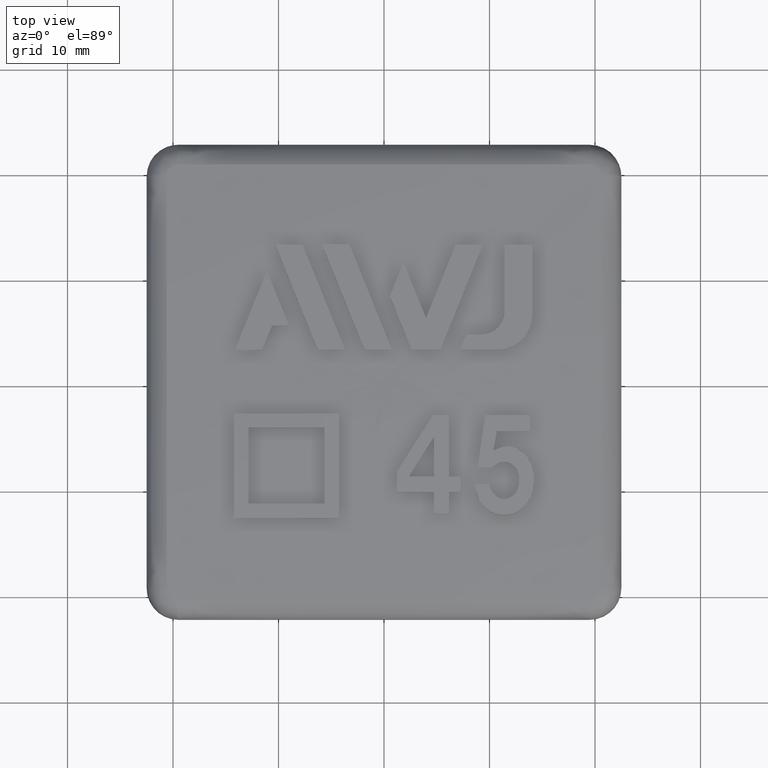
[diagram: clean part render]
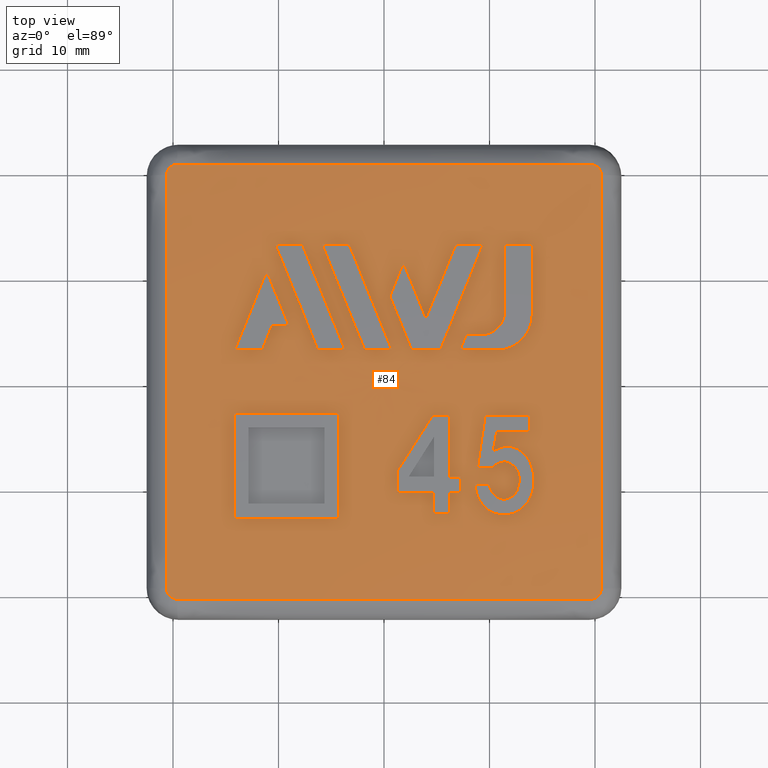
[diagram: same view with one face highlighted and labeled with its STEP entity id]
A machine part, top view. The second image highlights one B-rep face of the part: STEP entity #84.
In plain terms, the highlighted face is a freeform B-spline surface patch.
Its self-contained STEP definition (entity closure, byte-faithful):
#84 = ADVANCED_FACE( '', ( #376, #377, #378, #379, #380, #381, #382, #383, #384, #385 ), #386, .T. );
#376 = FACE_BOUND( '', #1171, .T. );
#377 = FACE_BOUND( '', #1172, .T. );
#378 = FACE_BOUND( '', #1173, .T. );
#379 = FACE_BOUND( '', #1174, .T. );
#380 = FACE_OUTER_BOUND( '', #1175, .T. );
#381 = FACE_BOUND( '', #1176, .T. );
#382 = FACE_BOUND( '', #1177, .T. );
#383 = FACE_BOUND( '', #1178, .T. );
#384 = FACE_BOUND( '', #1179, .T. );
#385 = FACE_BOUND( '', #1180, .T. );
#386 = ( B_SPLINE_SURFACE( 3, 3, ( ( #1182, #1183, #1184, #1185, #1186, #1187, #1188 ), ( #1189, #1190, #1191, #1192, #1193, #1194, #1195 ), ( #1196, #1197, #1198, #1199, #1200, #1201, #1202 ), ( #1203, #1204, #1205, #1206, #1207, #1208, #1209 ) ), .UNSPECIFIED., .F., .T., .F. )B_SPLINE_SURFACE_WITH_KNOTS( ( 4, 4 ), ( 4, 3, 4 ), ( 0.000000000000000, 6.28318530717959 ), ( -1.57957241555108, -1.53825044121029, -1.49692846686950 ), .UNSPECIFIED. )RATIONAL_B_SPLINE_SURFACE( ( ( 1.00000000000000, 0.333333333333333, 0.333333333333333, 1.00000000000000, 0.333333333333333, 0.333333333333333, 1.00000000000000 ), ( 0.999430912462452, 0.333143637487484, 0.333143637487484, 0.999430912462452, 0.333143637487484, 0.333143637487484, 0.999430912462452 ), ( 0.999430912462452, 0.333143637487484, 0.333143637487484, 0.999430912462452, 0.333143637487484, 0.333143637487484, 0.999430912462452 ), ( 1.00000000000000, 0.333333333333333, 0.333333333333333, 1.00000000000000, 0.333333333333333, 0.333333333333333, 1.00000000000000 ) ) )BOUNDED_SURFACE(  )REPRESENTATION_ITEM( '' )GEOMETRIC_REPRESENTATION_ITEM(  )SURFACE(  ) );
#1171 = EDGE_LOOP( '', ( #3608, #3609, #3610, #3611, #3612, #3613, #3614, #3615, #3616, #3617, #3618 ) );
#1172 = EDGE_LOOP( '', ( #3619, #3620, #3621, #3622, #3623 ) );
#1173 = EDGE_LOOP( '', ( #3624, #3625, #3626, #3627 ) );
#1174 = EDGE_LOOP( '', ( #3628, #3629, #3630, #3631, #3632, #3633, #3634, #3635 ) );
#1175 = EDGE_LOOP( '', ( #3636, #3637, #3638, #3639, #3640, #3641, #3642, #3643 ) );
#1176 = VERTEX_LOOP( '', #3644 );
#1177 = EDGE_LOOP( '', ( #3645, #3646, #3647, #3648, #3649, #3650, #3651 ) );
#1178 = EDGE_LOOP( '', ( #3652, #3653, #3654, #3655 ) );
#1179 = EDGE_LOOP( '', ( #3656, #3657, #3658, #3659 ) );
#1180 = EDGE_LOOP( '', ( #3660, #3661, #3662, #3663, #3664, #3665, #3666, #3667, #3668, #3669 ) );
#1182 = CARTESIAN_POINT( '', ( -28.9018373602094, 2.48535809648807E-016, 26.0590318492641 ) );
#1183 = CARTESIAN_POINT( '', ( -28.9018373602094, 57.8036747204188, 26.0590318492641 ) );
#1184 = CARTESIAN_POINT( '', ( 28.9018373602094, 57.8036747204188, 26.0590318492641 ) );
#1185 = CARTESIAN_POINT( '', ( 28.9018373602094, 2.48535809648810E-016, 26.0590318492641 ) );
#1186 = CARTESIAN_POINT( '', ( 28.9018373602094, -57.8036747204188, 26.0590318492641 ) );
#1187 = CARTESIAN_POINT( '', ( -28.9018373602094, -57.8036747204188, 26.0590318492641 ) );
#1188 = CARTESIAN_POINT( '', ( -28.9018373602094, 2.48535809648808E-016, 26.0590318492641 ) );
#1189 = CARTESIAN_POINT( '', ( -19.2835989907211, 2.92117942134704E-016, 26.7708055935348 ) );
#1190 = CARTESIAN_POINT( '', ( -19.2835989907211, 38.5671979814422, 26.7708055935348 ) );
#1191 = CARTESIAN_POINT( '', ( 19.2835989907211, 38.5671979814422, 26.7708055935348 ) );
#1192 = CARTESIAN_POINT( '', ( 19.2835989907211, 2.92117942134707E-016, 26.7708055935348 ) );
#1193 = CARTESIAN_POINT( '', ( 19.2835989907211, -38.5671979814422, 26.7708055935348 ) );
#1194 = CARTESIAN_POINT( '', ( -19.2835989907211, -38.5671979814422, 26.7708055935348 ) );
#1195 = CARTESIAN_POINT( '', ( -19.2835989907211, 2.92117942134704E-016, 26.7708055935348 ) );
#1196 = CARTESIAN_POINT( '', ( -9.64416752366771, 3.11334137434234E-016, 27.0846402431681 ) );
#1197 = CARTESIAN_POINT( '', ( -9.64416752366771, 19.2883350473354, 27.0846402431682 ) );
#1198 = CARTESIAN_POINT( '', ( 9.64416752366771, 19.2883350473354, 27.0846402431682 ) );
#1199 = CARTESIAN_POINT( '', ( 9.64416752366771, 3.11334137434236E-016, 27.0846402431682 ) );
#1200 = CARTESIAN_POINT( '', ( 9.64416752366771, -19.2883350473354, 27.0846402431682 ) );
#1201 = CARTESIAN_POINT( '', ( -9.64416752366771, -19.2883350473354, 27.0846402431682 ) );
#1202 = CARTESIAN_POINT( '', ( -9.64416752366771, 3.11334137434235E-016, 27.0846402431682 ) );
#1203 = CARTESIAN_POINT( '', ( -3.33934269125535E-014, 3.06151588455599E-016, 27.0000000000001 ) );
#1204 = CARTESIAN_POINT( '', ( -3.33934269125535E-014, 6.74518520665377E-014, 27.0000000000001 ) );
#1205 = CARTESIAN_POINT( '', ( 3.37522735655285E-014, 6.74518520665377E-014, 27.0000000000001 ) );
#1206 = CARTESIAN_POINT( '', ( 3.37522735655285E-014, 3.06151588455601E-016, 27.0000000000001 ) );
#1207 = CARTESIAN_POINT( '', ( 3.37522735655285E-014, -6.68395488896265E-014, 27.0000000000001 ) );
#1208 = CARTESIAN_POINT( '', ( -3.33934269125535E-014, -6.68395488896265E-014, 27.0000000000001 ) );
#1209 = CARTESIAN_POINT( '', ( -3.33934269125535E-014, 3.06151588455599E-016, 27.0000000000001 ) );
#3608 = ORIENTED_EDGE( '', *, *, #5857, .F. );
#3609 = ORIENTED_EDGE( '', *, *, #5858, .F. );
#3610 = ORIENTED_EDGE( '', *, *, #5859, .F. );
#3611 = ORIENTED_EDGE( '', *, *, #5860, .F. );
#3612 = ORIENTED_EDGE( '', *, *, #5861, .F. );
#3613 = ORIENTED_EDGE( '', *, *, #5862, .F. );
#3614 = ORIENTED_EDGE( '', *, *, #5863, .F. );
#3615 = ORIENTED_EDGE( '', *, *, #5864, .F. );
#3616 = ORIENTED_EDGE( '', *, *, #5865, .F. );
#3617 = ORIENTED_EDGE( '', *, *, #5866, .F. );
#3618 = ORIENTED_EDGE( '', *, *, #5867, .F. );
#3619 = ORIENTED_EDGE( '', *, *, #5868, .F. );
#3620 = ORIENTED_EDGE( '', *, *, #5869, .F. );
#3621 = ORIENTED_EDGE( '', *, *, #5870, .F. );
#3622 = ORIENTED_EDGE( '', *, *, #5871, .F. );
#3623 = ORIENTED_EDGE( '', *, *, #5872, .F. );
#3624 = ORIENTED_EDGE( '', *, *, #5873, .F. );
#3625 = ORIENTED_EDGE( '', *, *, #5874, .F. );
#3626 = ORIENTED_EDGE( '', *, *, #5875, .F. );
#3627 = ORIENTED_EDGE( '', *, *, #5876, .F. );
#3628 = ORIENTED_EDGE( '', *, *, #5818, .F. );
#3629 = ORIENTED_EDGE( '', *, *, #5877, .F. );
#3630 = ORIENTED_EDGE( '', *, *, #5878, .F. );
#3631 = ORIENTED_EDGE( '', *, *, #5879, .F. );
#3632 = ORIENTED_EDGE( '', *, *, #5880, .F. );
#3633 = ORIENTED_EDGE( '', *, *, #5881, .F. );
#3634 = ORIENTED_EDGE( '', *, *, #5855, .F. );
#3635 = ORIENTED_EDGE( '', *, *, #5853, .F. );
#3636 = ORIENTED_EDGE( '', *, *, #5882, .T. );
#3637 = ORIENTED_EDGE( '', *, *, #5883, .T. );
#3638 = ORIENTED_EDGE( '', *, *, #5884, .T. );
#3639 = ORIENTED_EDGE( '', *, *, #5885, .T. );
#3640 = ORIENTED_EDGE( '', *, *, #5886, .T. );
#3641 = ORIENTED_EDGE( '', *, *, #5887, .T. );
#3642 = ORIENTED_EDGE( '', *, *, #5888, .T. );
#3643 = ORIENTED_EDGE( '', *, *, #5889, .T. );
#3644 = VERTEX_POINT( '', #5890 );
#3645 = ORIENTED_EDGE( '', *, *, #5891, .F. );
#3646 = ORIENTED_EDGE( '', *, *, #5892, .F. );
#3647 = ORIENTED_EDGE( '', *, *, #5893, .F. );
#3648 = ORIENTED_EDGE( '', *, *, #5894, .F. );
#3649 = ORIENTED_EDGE( '', *, *, #5895, .F. );
#3650 = ORIENTED_EDGE( '', *, *, #5896, .F. );
#3651 = ORIENTED_EDGE( '', *, *, #5897, .F. );
#3652 = ORIENTED_EDGE( '', *, *, #5898, .F. );
#3653 = ORIENTED_EDGE( '', *, *, #5899, .F. );
#3654 = ORIENTED_EDGE( '', *, *, #5900, .F. );
#3655 = ORIENTED_EDGE( '', *, *, #5901, .F. );
#3656 = ORIENTED_EDGE( '', *, *, #5902, .F. );
#3657 = ORIENTED_EDGE( '', *, *, #5903, .F. );
#3658 = ORIENTED_EDGE( '', *, *, #5904, .F. );
#3659 = ORIENTED_EDGE( '', *, *, #5905, .F. );
#3660 = ORIENTED_EDGE( '', *, *, #5825, .F. );
#3661 = ORIENTED_EDGE( '', *, *, #5822, .F. );
#3662 = ORIENTED_EDGE( '', *, *, #5906, .F. );
#3663 = ORIENTED_EDGE( '', *, *, #5907, .F. );
#3664 = ORIENTED_EDGE( '', *, *, #5908, .F. );
#3665 = ORIENTED_EDGE( '', *, *, #5909, .F. );
#3666 = ORIENTED_EDGE( '', *, *, #5910, .F. );
#3667 = ORIENTED_EDGE( '', *, *, #5911, .F. );
#3668 = ORIENTED_EDGE( '', *, *, #5912, .F. );
#3669 = ORIENTED_EDGE( '', *, *, #5913, .F. );
#5818 = EDGE_CURVE( '', #6569, #6571, #6572, .T. );
#5822 = EDGE_CURVE( '', #6577, #6579, #6580, .T. );
#5825 = EDGE_CURVE( '', #6579, #6584, #6585, .T. );
#5853 = EDGE_CURVE( '', #6571, #6637, #6638, .T. );
#5855 = EDGE_CURVE( '', #6637, #6640, #6641, .T. );
#5857 = EDGE_CURVE( '', #6643, #6644, #6645, .T. );
#5858 = EDGE_CURVE( '', #6646, #6643, #6647, .T. );
#5859 = EDGE_CURVE( '', #6648, #6646, #6649, .T. );
#5860 = EDGE_CURVE( '', #6650, #6648, #6651, .T. );
#5861 = EDGE_CURVE( '', #6652, #6650, #6653, .T. );
#5862 = EDGE_CURVE( '', #6654, #6652, #6655, .T. );
#5863 = EDGE_CURVE( '', #6656, #6654, #6657, .T. );
#5864 = EDGE_CURVE( '', #6658, #6656, #6659, .T. );
#5865 = EDGE_CURVE( '', #6660, #6658, #6661, .T. );
#5866 = EDGE_CURVE( '', #6662, #6660, #6663, .T. );
#5867 = EDGE_CURVE( '', #6644, #6662, #6664, .T. );
#5868 = EDGE_CURVE( '', #6665, #6666, #6667, .T. );
#5869 = EDGE_CURVE( '', #6668, #6665, #6669, .T. );
#5870 = EDGE_CURVE( '', #6670, #6668, #6671, .T. );
#5871 = EDGE_CURVE( '', #6672, #6670, #6673, .T. );
#5872 = EDGE_CURVE( '', #6666, #6672, #6674, .T. );
#5873 = EDGE_CURVE( '', #6675, #6676, #6677, .T. );
#5874 = EDGE_CURVE( '', #6678, #6675, #6679, .T. );
#5875 = EDGE_CURVE( '', #6680, #6678, #6681, .T. );
#5876 = EDGE_CURVE( '', #6676, #6680, #6682, .T. );
#5877 = EDGE_CURVE( '', #6683, #6569, #6684, .T. );
#5878 = EDGE_CURVE( '', #6685, #6683, #6686, .T. );
#5879 = EDGE_CURVE( '', #6687, #6685, #6688, .T. );
#5880 = EDGE_CURVE( '', #6689, #6687, #6690, .T. );
#5881 = EDGE_CURVE( '', #6640, #6689, #6691, .T. );
#5882 = EDGE_CURVE( '', #6692, #6693, #6694, .T. );
#5883 = EDGE_CURVE( '', #6693, #6695, #6696, .T. );
#5884 = EDGE_CURVE( '', #6695, #6697, #6698, .T. );
#5885 = EDGE_CURVE( '', #6697, #6699, #6700, .T. );
#5886 = EDGE_CURVE( '', #6699, #6701, #6702, .T. );
#5887 = EDGE_CURVE( '', #6701, #6703, #6704, .T. );
#5888 = EDGE_CURVE( '', #6703, #6705, #6706, .T. );
#5889 = EDGE_CURVE( '', #6705, #6692, #6707, .T. );
#5890 = CARTESIAN_POINT( '', ( 3.06151588455599E-016, 3.06151588455599E-016, 27.0000000000001 ) );
#5891 = EDGE_CURVE( '', #6708, #6709, #6710, .T. );
#5892 = EDGE_CURVE( '', #6711, #6708, #6712, .T. );
#5893 = EDGE_CURVE( '', #6713, #6711, #6714, .T. );
#5894 = EDGE_CURVE( '', #6715, #6713, #6716, .T. );
#5895 = EDGE_CURVE( '', #6717, #6715, #6718, .T. );
#5896 = EDGE_CURVE( '', #6719, #6717, #6720, .T. );
#5897 = EDGE_CURVE( '', #6709, #6719, #6721, .T. );
#5898 = EDGE_CURVE( '', #6722, #6723, #6724, .T. );
#5899 = EDGE_CURVE( '', #6725, #6722, #6726, .T. );
#5900 = EDGE_CURVE( '', #6727, #6725, #6728, .T. );
#5901 = EDGE_CURVE( '', #6723, #6727, #6729, .T. );
#5902 = EDGE_CURVE( '', #6730, #6731, #6732, .T. );
#5903 = EDGE_CURVE( '', #6733, #6730, #6734, .T. );
#5904 = EDGE_CURVE( '', #6735, #6733, #6736, .T. );
#5905 = EDGE_CURVE( '', #6731, #6735, #6737, .T. );
#5906 = EDGE_CURVE( '', #6738, #6577, #6739, .T. );
#5907 = EDGE_CURVE( '', #6740, #6738, #6741, .T. );
#5908 = EDGE_CURVE( '', #6742, #6740, #6743, .T. );
#5909 = EDGE_CURVE( '', #6744, #6742, #6745, .T. );
#5910 = EDGE_CURVE( '', #6746, #6744, #6747, .T. );
#5911 = EDGE_CURVE( '', #6748, #6746, #6749, .T. );
#5912 = EDGE_CURVE( '', #6750, #6748, #6751, .T. );
#5913 = EDGE_CURVE( '', #6584, #6750, #6752, .T. );
#6569 = VERTEX_POINT( '', #7802 );
#6571 = VERTEX_POINT( '', #7805 );
#6572 = B_SPLINE_CURVE_WITH_KNOTS( '', 3, ( #7806, #7807, #7808, #7809, #7810, #7811 ), .UNSPECIFIED., .F., .F., ( 4, 2, 4 ), ( 2.22477593462587, 2.22810827699432, 2.23144061936276 ), .UNSPECIFIED. );
#6577 = VERTEX_POINT( '', #7854 );
#6579 = VERTEX_POINT( '', #7857 );
#6580 = B_SPLINE_CURVE_WITH_KNOTS( '', 3, ( #7858, #7859, #7860, #7861, #7862, #7863, #7864, #7865, #7866, #7867, #7868, #7869, #7870, #7871, #7872, #7873, #7874, #7875, #7876, #7877, #7878, #7879, #7880, #7881, #7882, #7883, #7884, #7885, #7886, #7887, #7888, #7889, #7890, #7891, #7892, #7893, #7894, #7895 ), .UNSPECIFIED., .F., .F., ( 4, 2, 2, 2, 2, 2, 2, 2, 2, 2, 2, 2, 2, 2, 2, 2, 2, 2, 4 ), ( 0.000000000000000, 0.000529531889568464, 0.00105906377913693, 0.00158859566870539, 0.00185336161348963, 0.00211812755827386, 0.00264765944784233, 0.00317719133741080, 0.00370672322697927, 0.00423625511654774, 0.00476578700611621, 0.00529531889568467, 0.00582485078525314, 0.00635438267482161, 0.00688391456439008, 0.00714868050917432, 0.00741344645395855, 0.00794297834352703, 0.00847251023309550 ), .UNSPECIFIED. );
#6584 = VERTEX_POINT( '', #7905 );
#6585 = B_SPLINE_CURVE_WITH_KNOTS( '', 3, ( #7906, #7907, #7908, #7909, #7910, #7911 ), .UNSPECIFIED., .F., .F., ( 4, 2, 4 ), ( 2.22912332953181, 2.22978244747642, 2.23044156542103 ), .UNSPECIFIED. );
#6637 = VERTEX_POINT( '', #8191 );
#6638 = B_SPLINE_CURVE_WITH_KNOTS( '', 3, ( #8192, #8193, #8194, #8195, #8196, #8197 ), .UNSPECIFIED., .F., .F., ( 4, 2, 4 ), ( 2.22688974895914, 2.22819664529334, 2.22950354162755 ), .UNSPECIFIED. );
#6640 = VERTEX_POINT( '', #8200 );
#6641 = B_SPLINE_CURVE_WITH_KNOTS( '', 3, ( #8201, #8202, #8203, #8204, #8205, #8206 ), .UNSPECIFIED., .F., .F., ( 4, 2, 4 ), ( 2.22599306425209, 2.22915470663304, 2.23231634901398 ), .UNSPECIFIED. );
#6643 = VERTEX_POINT( '', #8209 );
#6644 = VERTEX_POINT( '', #8210 );
#6645 = B_SPLINE_CURVE_WITH_KNOTS( '', 3, ( #8211, #8212, #8213, #8214 ), .UNSPECIFIED., .F., .F., ( 4, 4 ), ( 2.36976834860875E-007, 0.00635568711091535 ), .UNSPECIFIED. );
#6646 = VERTEX_POINT( '', #8215 );
#6647 = B_SPLINE_CURVE_WITH_KNOTS( '', 3, ( #8216, #8217, #8218, #8219, #8220, #8221 ), .UNSPECIFIED., .F., .F., ( 4, 2, 4 ), ( 2.22904412354698, 2.22981648426529, 2.23058884498360 ), .UNSPECIFIED. );
#6648 = VERTEX_POINT( '', #8222 );
#6649 = B_SPLINE_CURVE_WITH_KNOTS( '', 3, ( #8223, #8224, #8225, #8226, #8227, #8228 ), .UNSPECIFIED., .F., .F., ( 4, 2, 4 ), ( 2.22853083952095, 2.23146284338398, 2.23439484724701 ), .UNSPECIFIED. );
#6650 = VERTEX_POINT( '', #8229 );
#6651 = B_SPLINE_CURVE_WITH_KNOTS( '', 3, ( #8230, #8231, #8232, #8233, #8234, #8235 ), .UNSPECIFIED., .F., .F., ( 4, 2, 4 ), ( 2.22979346956356, 2.23031620452658, 2.23083893948960 ), .UNSPECIFIED. );
#6652 = VERTEX_POINT( '', #8236 );
#6653 = B_SPLINE_CURVE_WITH_KNOTS( '', 3, ( #8237, #8238, #8239, #8240, #8241, #8242 ), .UNSPECIFIED., .F., .F., ( 4, 2, 4 ), ( 2.23021495950891, 2.23094225708933, 2.23166955466975 ), .UNSPECIFIED. );
#6654 = VERTEX_POINT( '', #8243 );
#6655 = B_SPLINE_CURVE_WITH_KNOTS( '', 3, ( #8244, #8245, #8246, #8247, #8248, #8249 ), .UNSPECIFIED., .F., .F., ( 4, 2, 4 ), ( 2.22923393070380, 2.22975673819137, 2.23027954567895 ), .UNSPECIFIED. );
#6656 = VERTEX_POINT( '', #8250 );
#6657 = B_SPLINE_CURVE_WITH_KNOTS( '', 3, ( #8251, #8252, #8253, #8254, #8255, #8256 ), .UNSPECIFIED., .F., .F., ( 4, 2, 4 ), ( 2.22938192111903, 2.23040473772527, 2.23142755433151 ), .UNSPECIFIED. );
#6658 = VERTEX_POINT( '', #8257 );
#6659 = B_SPLINE_CURVE_WITH_KNOTS( '', 3, ( #8258, #8259, #8260, #8261, #8262, #8263 ), .UNSPECIFIED., .F., .F., ( 4, 2, 4 ), ( 2.22837573951470, 2.22910289735454, 2.22983005519439 ), .UNSPECIFIED. );
#6660 = VERTEX_POINT( '', #8264 );
#6661 = B_SPLINE_CURVE_WITH_KNOTS( '', 3, ( #8265, #8266, #8267, #8268, #8269, #8270 ), .UNSPECIFIED., .F., .F., ( 4, 2, 4 ), ( 2.22935268584651, 2.23037584267148, 2.23139899949645 ), .UNSPECIFIED. );
#6662 = VERTEX_POINT( '', #8271 );
#6663 = B_SPLINE_CURVE_WITH_KNOTS( '', 3, ( #8272, #8273, #8274, #8275, #8276, #8277 ), .UNSPECIFIED., .F., .F., ( 4, 2, 4 ), ( 2.22823231250769, 2.22998255008877, 2.23173278766984 ), .UNSPECIFIED. );
#6664 = B_SPLINE_CURVE_WITH_KNOTS( '', 3, ( #8278, #8279, #8280, #8281, #8282, #8283 ), .UNSPECIFIED., .F., .F., ( 4, 2, 4 ), ( 2.23008767142057, 2.23106530731191, 2.23204294320325 ), .UNSPECIFIED. );
#6665 = VERTEX_POINT( '', #8284 );
#6666 = VERTEX_POINT( '', #8285 );
#6667 = B_SPLINE_CURVE_WITH_KNOTS( '', 3, ( #8286, #8287, #8288, #8289 ), .UNSPECIFIED., .F., .F., ( 4, 4 ), ( 2.15717257844804E-007, 0.00559854641042493 ), .UNSPECIFIED. );
#6668 = VERTEX_POINT( '', #8290 );
#6669 = B_SPLINE_CURVE_WITH_KNOTS( '', 3, ( #8291, #8292, #8293, #8294, #8295, #8296 ), .UNSPECIFIED., .F., .F., ( 4, 2, 4 ), ( 2.22995204188310, 2.23075574416263, 2.23155944644217 ), .UNSPECIFIED. );
#6670 = VERTEX_POINT( '', #8297 );
#6671 = B_SPLINE_CURVE_WITH_KNOTS( '', 3, ( #8298, #8299, #8300, #8301 ), .UNSPECIFIED., .F., .F., ( 4, 4 ), ( 2.15729402223694E-007, 0.00249214204149799 ), .UNSPECIFIED. );
#6672 = VERTEX_POINT( '', #8302 );
#6673 = B_SPLINE_CURVE_WITH_KNOTS( '', 3, ( #8303, #8304, #8305, #8306, #8307, #8308 ), .UNSPECIFIED., .F., .F., ( 4, 2, 4 ), ( 2.22923078061002, 2.23052287565939, 2.23181497070876 ), .UNSPECIFIED. );
#6674 = B_SPLINE_CURVE_WITH_KNOTS( '', 3, ( #8309, #8310, #8311, #8312 ), .UNSPECIFIED., .F., .F., ( 4, 4 ), ( 2.15711232177109E-007, 0.00808885337525597 ), .UNSPECIFIED. );
#6675 = VERTEX_POINT( '', #8313 );
#6676 = VERTEX_POINT( '', #8314 );
#6677 = B_SPLINE_CURVE_WITH_KNOTS( '', 3, ( #8315, #8316, #8317, #8318 ), .UNSPECIFIED., .F., .F., ( 4, 4 ), ( 2.15794727837549E-007, 0.0107900930982365 ), .UNSPECIFIED. );
#6678 = VERTEX_POINT( '', #8319 );
#6679 = B_SPLINE_CURVE_WITH_KNOTS( '', 3, ( #8320, #8321, #8322, #8323, #8324, #8325 ), .UNSPECIFIED., .F., .F., ( 4, 2, 4 ), ( 2.22770542684242, 2.22899757634596, 2.23028972584950 ), .UNSPECIFIED. );
#6680 = VERTEX_POINT( '', #8326 );
#6681 = B_SPLINE_CURVE_WITH_KNOTS( '', 3, ( #8327, #8328, #8329, #8330 ), .UNSPECIFIED., .F., .F., ( 4, 4 ), ( 2.15708805115994E-007, 0.0107903182703261 ), .UNSPECIFIED. );
#6682 = B_SPLINE_CURVE_WITH_KNOTS( '', 3, ( #8331, #8332, #8333, #8334, #8335, #8336 ), .UNSPECIFIED., .F., .F., ( 4, 2, 4 ), ( 2.23002680625582, 2.23131938672870, 2.23261196720157 ), .UNSPECIFIED. );
#6683 = VERTEX_POINT( '', #8337 );
#6684 = B_SPLINE_CURVE_WITH_KNOTS( '', 3, ( #8338, #8339, #8340, #8341, #8342, #8343, #8344, #8345, #8346, #8347, #8348, #8349, #8350, #8351, #8352, #8353, #8354, #8355 ), .UNSPECIFIED., .F., .F., ( 4, 2, 2, 2, 2, 2, 2, 2, 4 ), ( 1.97210131169578E-007, 0.000651936557727233, 0.00130367590532330, 0.00195541525291936, 0.00260715460051542, 0.00325889394811149, 0.00391063329570755, 0.00456237264330362, 0.00521411199089968 ), .UNSPECIFIED. );
#6685 = VERTEX_POINT( '', #8356 );
#6686 = B_SPLINE_CURVE_WITH_KNOTS( '', 3, ( #8357, #8358, #8359, #8360, #8361, #8362 ), .UNSPECIFIED., .F., .F., ( 4, 2, 4 ), ( 2.22929751230005, 2.23105331293101, 2.23280911356196 ), .UNSPECIFIED. );
#6687 = VERTEX_POINT( '', #8363 );
#6688 = B_SPLINE_CURVE_WITH_KNOTS( '', 3, ( #8364, #8365, #8366, #8367 ), .UNSPECIFIED., .F., .F., ( 4, 4 ), ( 2.15725404565878E-007, 0.00156913018067744 ), .UNSPECIFIED. );
#6689 = VERTEX_POINT( '', #8368 );
#6690 = B_SPLINE_CURVE_WITH_KNOTS( '', 3, ( #8369, #8370, #8371, #8372, #8373, #8374 ), .UNSPECIFIED., .F., .F., ( 4, 2, 4 ), ( 2.23059286547144, 2.23130326573433, 2.23201366599722 ), .UNSPECIFIED. );
#6691 = B_SPLINE_CURVE_WITH_KNOTS( '', 3, ( #8375, #8376, #8377, #8378, #8379, #8380, #8381, #8382, #8383, #8384, #8385, #8386, #8387, #8388, #8389, #8390 ), .UNSPECIFIED., .F., .F., ( 4, 2, 2, 2, 2, 2, 2, 4 ), ( 1.97183203978376E-007, 0.000434664643223471, 0.000869132103242963, 0.00130359956326245, 0.00173806702328195, 0.00217253448330144, 0.00260700194332093, 0.00347593686335992 ), .UNSPECIFIED. );
#6692 = VERTEX_POINT( '', #8391 );
#6693 = VERTEX_POINT( '', #8392 );
#6694 = B_SPLINE_CURVE_WITH_KNOTS( '', 3, ( #8393, #8394, #8395, #8396, #8397, #8398, #8399, #8400, #8401, #8402, #8403, #8404, #8405, #8406, #8407, #8408, #8409, #8410, #8411, #8412, #8413, #8414, #8415, #8416, #8417, #8418, #8419, #8420, #8421, #8422, #8423, #8424, #8425, #8426, #8427, #8428, #8429, #8430 ), .UNSPECIFIED., .F., .F., ( 4, 1, 1, 2, 2, 2, 1, 1, 2, 1, 2, 2, 1, 1, 2, 2, 2, 1, 1, 2, 2, 2, 1, 4 ), ( 0.000000000000000, 9.81915903894197E-005, 0.000196383180778839, 0.000294574771168259, 0.000319122668765607, 0.000343670566362954, 0.000392766361557639, 0.000490957951947019, 0.000589149542336399, 0.000638245337531096, 0.000662793235128449, 0.000687341132725801, 0.000785532723115191, 0.000883724313504581, 0.000981915903893970, 0.00100646380149132, 0.00103101169908868, 0.00108010749428337, 0.00117829908467276, 0.00127649067506215, 0.00132558647025684, 0.00137468226545153, 0.00147287385584091, 0.00157106544623028 ), .UNSPECIFIED. );
#6695 = VERTEX_POINT( '', #8431 );
#6696 = B_SPLINE_CURVE_WITH_KNOTS( '', 3, ( #8432, #8433, #8434, #8435, #8436, #8437, #8438, #8439, #8440, #8441, #8442, #8443, #8444, #8445, #8446, #8447, #8448, #8449, #8450, #8451 ), .UNSPECIFIED., .F., .F., ( 4, 2, 2, 2, 1, 2, 1, 2, 2, 2, 4 ), ( 0.000000000000000, 0.00490044809302909, 0.00980089618605818, 0.0147013442790873, 0.0196017923721164, 0.0245022404651454, 0.0269524645116600, 0.0281775765349173, 0.0294026885581745, 0.0343031366512036, 0.0392035847442327 ), .UNSPECIFIED. );
#6697 = VERTEX_POINT( '', #8452 );
#6698 = B_SPLINE_CURVE_WITH_KNOTS( '', 3, ( #8453, #8454, #8455, #8456, #8457, #8458, #8459, #8460, #8461, #8462, #8463, #8464, #8465, #8466, #8467, #8468, #8469, #8470, #8471, #8472, #8473, #8474, #8475, #8476, #8477, #8478, #8479, #8480, #8481, #8482, #8483, #8484, #8485, #8486, #8487, #8488, #8489, #8490 ), .UNSPECIFIED., .F., .F., ( 4, 1, 1, 2, 2, 2, 1, 1, 2, 1, 2, 2, 1, 1, 2, 2, 2, 1, 1, 2, 2, 2, 1, 4 ), ( 0.000000000000000, 9.81915903893868E-005, 0.000196383180778774, 0.000294574771168160, 0.000319122668765500, 0.000343670566362839, 0.000392766361557527, 0.000490957951946913, 0.000589149542336298, 0.000638245337530990, 0.000662793235128336, 0.000687341132725683, 0.000785532723115069, 0.000883724313504454, 0.000981915903893839, 0.00100646380149119, 0.00103101169908854, 0.00108010749428325, 0.00117829908467267, 0.00127649067506209, 0.00132558647025680, 0.00137468226545150, 0.00147287385584090, 0.00157106544623030 ), .UNSPECIFIED. );
#6699 = VERTEX_POINT( '', #8491 );
#6700 = B_SPLINE_CURVE_WITH_KNOTS( '', 3, ( #8492, #8493, #8494, #8495, #8496, #8497, #8498, #8499, #8500, #8501, #8502, #8503, #8504, #8505, #8506, #8507, #8508, #8509, #8510, #8511 ), .UNSPECIFIED., .F., .F., ( 4, 2, 2, 2, 1, 2, 1, 2, 2, 2, 4 ), ( 0.000000000000000, 0.00490044809302910, 0.00980089618605820, 0.0147013442790873, 0.0196017923721164, 0.0245022404651455, 0.0269524645116600, 0.0281775765349173, 0.0294026885581746, 0.0343031366512036, 0.0392035847442327 ), .UNSPECIFIED. );
#6701 = VERTEX_POINT( '', #8512 );
#6702 = B_SPLINE_CURVE_WITH_KNOTS( '', 3, ( #8513, #8514, #8515, #8516, #8517, #8518, #8519, #8520, #8521, #8522, #8523, #8524, #8525, #8526, #8527, #8528, #8529, #8530, #8531, #8532, #8533, #8534, #8535, #8536, #8537, #8538, #8539, #8540, #8541, #8542, #8543, #8544, #8545, #8546, #8547, #8548, #8549, #8550 ), .UNSPECIFIED., .F., .F., ( 4, 1, 1, 2, 2, 2, 1, 1, 2, 1, 2, 2, 1, 1, 2, 2, 2, 1, 1, 2, 2, 2, 1, 4 ), ( 0.000000000000000, 9.81915903893911E-005, 0.000196383180778782, 0.000294574771168173, 0.000319122668765514, 0.000343670566362854, 0.000392766361557545, 0.000490957951946925, 0.000589149542336305, 0.000638245337530994, 0.000662793235128342, 0.000687341132725691, 0.000785532723115064, 0.000883724313504437, 0.000981915903893810, 0.00100646380149116, 0.00103101169908852, 0.00108010749428322, 0.00117829908467263, 0.00127649067506204, 0.00132558647025675, 0.00137468226545146, 0.00147287385584088, 0.00157106544623029 ), .UNSPECIFIED. );
#6703 = VERTEX_POINT( '', #8551 );
#6704 = B_SPLINE_CURVE_WITH_KNOTS( '', 3, ( #8552, #8553, #8554, #8555, #8556, #8557, #8558, #8559, #8560, #8561, #8562, #8563, #8564, #8565, #8566, #8567, #8568, #8569, #8570, #8571 ), .UNSPECIFIED., .F., .F., ( 4, 2, 2, 2, 1, 2, 1, 2, 2, 2, 4 ), ( 0.000000000000000, 0.00490044809302909, 0.00980089618605818, 0.0147013442790873, 0.0196017923721164, 0.0245022404651454, 0.0269524645116600, 0.0281775765349173, 0.0294026885581745, 0.0343031366512036, 0.0392035847442327 ), .UNSPECIFIED. );
#6705 = VERTEX_POINT( '', #8572 );
#6706 = B_SPLINE_CURVE_WITH_KNOTS( '', 3, ( #8573, #8574, #8575, #8576, #8577, #8578, #8579, #8580, #8581, #8582, #8583, #8584, #8585, #8586, #8587, #8588, #8589, #8590, #8591, #8592, #8593, #8594, #8595, #8596, #8597, #8598, #8599, #8600, #8601, #8602, #8603, #8604, #8605, #8606, #8607, #8608, #8609, #8610 ), .UNSPECIFIED., .F., .F., ( 4, 1, 1, 2, 2, 2, 1, 1, 2, 1, 2, 2, 1, 1, 2, 2, 2, 1, 1, 2, 2, 2, 1, 4 ), ( 0.000000000000000, 9.81915903893698E-005, 0.000196383180778740, 0.000294574771168109, 0.000319122668765444, 0.000343670566362780, 0.000392766361557459, 0.000490957951946828, 0.000589149542336196, 0.000638245337530879, 0.000662793235128224, 0.000687341132725570, 0.000785532723114957, 0.000883724313504344, 0.000981915903893732, 0.00100646380149109, 0.00103101169908845, 0.00108010749428317, 0.00117829908467260, 0.00127649067506204, 0.00132558647025675, 0.00137468226545147, 0.00147287385584088, 0.00157106544623030 ), .UNSPECIFIED. );
#6707 = B_SPLINE_CURVE_WITH_KNOTS( '', 3, ( #8611, #8612, #8613, #8614, #8615, #8616, #8617, #8618, #8619, #8620, #8621, #8622, #8623, #8624, #8625, #8626, #8627, #8628, #8629, #8630 ), .UNSPECIFIED., .F., .F., ( 4, 2, 2, 2, 1, 2, 1, 2, 2, 2, 4 ), ( 0.000000000000000, 0.00490044809302909, 0.00980089618605818, 0.0147013442790873, 0.0196017923721164, 0.0245022404651455, 0.0269524645116600, 0.0281775765349173, 0.0294026885581745, 0.0343031366512036, 0.0392035847442327 ), .UNSPECIFIED. );
#6708 = VERTEX_POINT( '', #8631 );
#6709 = VERTEX_POINT( '', #8632 );
#6710 = B_SPLINE_CURVE_WITH_KNOTS( '', 3, ( #8633, #8634, #8635, #8636, #8637, #8638 ), .UNSPECIFIED., .F., .F., ( 4, 2, 4 ), ( 2.22871841725375, 2.23008451207896, 2.23145060690418 ), .UNSPECIFIED. );
#6711 = VERTEX_POINT( '', #8639 );
#6712 = B_SPLINE_CURVE_WITH_KNOTS( '', 3, ( #8640, #8641, #8642, #8643 ), .UNSPECIFIED., .F., .F., ( 4, 4 ), ( 2.15725646866316E-007, 0.00549676631498152 ), .UNSPECIFIED. );
#6713 = VERTEX_POINT( '', #8644 );
#6714 = B_SPLINE_CURVE_WITH_KNOTS( '', 3, ( #8645, #8646, #8647, #8648 ), .UNSPECIFIED., .F., .F., ( 4, 4 ), ( 2.15757783069652E-007, 0.00345133545418162 ), .UNSPECIFIED. );
#6715 = VERTEX_POINT( '', #8649 );
#6716 = B_SPLINE_CURVE_WITH_KNOTS( '', 3, ( #8650, #8651, #8652, #8653 ), .UNSPECIFIED., .F., .F., ( 4, 4 ), ( 2.15708499272833E-007, 0.00569396645974011 ), .UNSPECIFIED. );
#6717 = VERTEX_POINT( '', #8654 );
#6718 = B_SPLINE_CURVE_WITH_KNOTS( '', 3, ( #8655, #8656, #8657, #8658 ), .UNSPECIFIED., .F., .F., ( 4, 4 ), ( 2.15815435564538E-007, 0.00753673661873053 ), .UNSPECIFIED. );
#6719 = VERTEX_POINT( '', #8659 );
#6720 = B_SPLINE_CURVE_WITH_KNOTS( '', 3, ( #8660, #8661, #8662, #8663, #8664, #8665 ), .UNSPECIFIED., .F., .F., ( 4, 2, 4 ), ( 2.22750563159631, 2.22879778081893, 2.23008993004155 ), .UNSPECIFIED. );
#6721 = B_SPLINE_CURVE_WITH_KNOTS( '', 3, ( #8666, #8667, #8668, #8669 ), .UNSPECIFIED., .F., .F., ( 4, 4 ), ( 2.15703842271360E-007, 0.0107909874530672 ), .UNSPECIFIED. );
#6722 = VERTEX_POINT( '', #8670 );
#6723 = VERTEX_POINT( '', #8671 );
#6724 = B_SPLINE_CURVE_WITH_KNOTS( '', 3, ( #8672, #8673, #8674, #8675 ), .UNSPECIFIED., .F., .F., ( 4, 4 ), ( 2.15830362503980E-007, 0.0107910654587292 ), .UNSPECIFIED. );
#6725 = VERTEX_POINT( '', #8676 );
#6726 = B_SPLINE_CURVE_WITH_KNOTS( '', 3, ( #8677, #8678, #8679, #8680, #8681, #8682 ), .UNSPECIFIED., .F., .F., ( 4, 2, 4 ), ( 2.22726184592328, 2.22855358618458, 2.22984532644588 ), .UNSPECIFIED. );
#6727 = VERTEX_POINT( '', #8683 );
#6728 = B_SPLINE_CURVE_WITH_KNOTS( '', 3, ( #8684, #8685, #8686, #8687 ), .UNSPECIFIED., .F., .F., ( 4, 4 ), ( 2.15707881824334E-007, 0.0107909248143900 ), .UNSPECIFIED. );
#6729 = B_SPLINE_CURVE_WITH_KNOTS( '', 3, ( #8688, #8689, #8690, #8691, #8692, #8693 ), .UNSPECIFIED., .F., .F., ( 4, 2, 4 ), ( 2.22871236063200, 2.23000399784594, 2.23129563505988 ), .UNSPECIFIED. );
#6730 = VERTEX_POINT( '', #8694 );
#6731 = VERTEX_POINT( '', #8695 );
#6732 = B_SPLINE_CURVE_WITH_KNOTS( '', 3, ( #8696, #8697, #8698, #8699, #8700, #8701 ), .UNSPECIFIED., .F., .F., ( 4, 2, 4 ), ( 2.22599431594006, 2.23097369711112, 2.23595307828218 ), .UNSPECIFIED. );
#6733 = VERTEX_POINT( '', #8702 );
#6734 = B_SPLINE_CURVE_WITH_KNOTS( '', 3, ( #8703, #8704, #8705, #8706, #8707, #8708 ), .UNSPECIFIED., .F., .F., ( 4, 2, 4 ), ( 2.22653219925335, 2.23148735764781, 2.23644251604227 ), .UNSPECIFIED. );
#6735 = VERTEX_POINT( '', #8709 );
#6736 = B_SPLINE_CURVE_WITH_KNOTS( '', 3, ( #8710, #8711, #8712, #8713, #8714, #8715 ), .UNSPECIFIED., .F., .F., ( 4, 2, 4 ), ( 2.22370130922812, 2.22867831023880, 2.23365531124948 ), .UNSPECIFIED. );
#6737 = B_SPLINE_CURVE_WITH_KNOTS( '', 3, ( #8716, #8717, #8718, #8719, #8720, #8721 ), .UNSPECIFIED., .F., .F., ( 4, 2, 4 ), ( 2.22324316735129, 2.22819672898270, 2.23315029061411 ), .UNSPECIFIED. );
#6738 = VERTEX_POINT( '', #8722 );
#6739 = B_SPLINE_CURVE_WITH_KNOTS( '', 3, ( #8723, #8724, #8725, #8726, #8727, #8728 ), .UNSPECIFIED., .F., .F., ( 4, 2, 4 ), ( 2.22928847427879, 2.22999323105927, 2.23069798783975 ), .UNSPECIFIED. );
#6740 = VERTEX_POINT( '', #8729 );
#6741 = B_SPLINE_CURVE_WITH_KNOTS( '', 3, ( #8730, #8731, #8732, #8733 ), .UNSPECIFIED., .F., .F., ( 4, 4 ), ( 2.02102985770348E-007, 0.00505301702037445 ), .UNSPECIFIED. );
#6742 = VERTEX_POINT( '', #8734 );
#6743 = B_SPLINE_CURVE_WITH_KNOTS( '', 3, ( #8735, #8736, #8737, #8738, #8739, #8740 ), .UNSPECIFIED., .F., .F., ( 4, 2, 4 ), ( 2.22838830164053, 2.23050211602602, 2.23261593041152 ), .UNSPECIFIED. );
#6744 = VERTEX_POINT( '', #8741 );
#6745 = B_SPLINE_CURVE_WITH_KNOTS( '', 3, ( #8742, #8743, #8744, #8745, #8746, #8747 ), .UNSPECIFIED., .F., .F., ( 4, 2, 4 ), ( 2.22801649048931, 2.22878902595039, 2.22956156141147 ), .UNSPECIFIED. );
#6746 = VERTEX_POINT( '', #8748 );
#6747 = B_SPLINE_CURVE_WITH_KNOTS( '', 3, ( #8749, #8750, #8751, #8752, #8753, #8754 ), .UNSPECIFIED., .F., .F., ( 4, 2, 4 ), ( 2.22870113817387, 2.23026959535455, 2.23183805253523 ), .UNSPECIFIED. );
#6748 = VERTEX_POINT( '', #8755 );
#6749 = B_SPLINE_CURVE_WITH_KNOTS( '', 3, ( #8756, #8757, #8758, #8759 ), .UNSPECIFIED., .F., .F., ( 4, 4 ), ( 2.02904092837882E-007, 0.00189086805188335 ), .UNSPECIFIED. );
#6750 = VERTEX_POINT( '', #8760 );
#6751 = B_SPLINE_CURVE_WITH_KNOTS( '', 3, ( #8761, #8762, #8763, #8764, #8765, #8766, #8767, #8768, #8769, #8770, #8771, #8772, #8773, #8774, #8775, #8776, #8777, #8778, #8779, #8780, #8781, #8782, #8783, #8784, #8785, #8786, #8787, #8788, #8789, #8790, #8791, #8792, #8793, #8794, #8795, #8796, #8797, #8798, #8799, #8800, #8801, #8802, #8803, #8804 ), .UNSPECIFIED., .F., .F., ( 4, 2, 2, 2, 2, 2, 2, 2, 2, 2, 2, 2, 2, 2, 2, 2, 2, 2, 2, 2, 2, 4 ), ( 0.000000000000000, 0.000813186946035667, 0.00121978041905350, 0.00162637389207133, 0.00203296736508917, 0.00243956083810700, 0.00325274778414266, 0.00406593473017833, 0.00447252820319616, 0.00487912167621399, 0.00569230862224965, 0.00650549556828532, 0.00731868251432098, 0.00813186946035664, 0.00894505640639230, 0.00935164987941013, 0.00975824335242796, 0.0105714302984636, 0.0113846172444993, 0.0117912107175171, 0.0121978041905350, 0.0130109911365706 ), .UNSPECIFIED. );
#6752 = B_SPLINE_CURVE_WITH_KNOTS( '', 3, ( #8805, #8806, #8807, #8808, #8809, #8810 ), .UNSPECIFIED., .F., .F., ( 4, 2, 4 ), ( 0.000000000000000, 0.00106964353650890, 0.00213928707301781 ), .UNSPECIFIED. );
#7802 = CARTESIAN_POINT( '', ( 14.0529347883750, 6.32816624999995, 26.7958586900929 ) );
#7805 = CARTESIAN_POINT( '', ( 14.0529347883750, 12.9941783770600, 26.6444427415899 ) );
#7806 = CARTESIAN_POINT( '', ( 14.0529347883750, 6.32816624999994, 26.7958586900929 ) );
#7807 = CARTESIAN_POINT( '', ( 14.0529347883750, 7.43965137372273, 26.7797576346215 ) );
#7808 = CARTESIAN_POINT( '', ( 14.0529347883750, 8.55108736443742, 26.7592351287389 ) );
#7809 = CARTESIAN_POINT( '', ( 14.0529347883750, 10.7738559203623, 26.7088829167611 ) );
#7810 = CARTESIAN_POINT( '', ( 14.0529347883750, 11.8838274800671, 26.6790868537870 ) );
#7811 = CARTESIAN_POINT( '', ( 14.0529347883750, 12.9941783770600, 26.6444427415900 ) );
#7854 = CARTESIAN_POINT( '', ( 10.2699374999999, -8.18531818181820, 26.8688365018683 ) );
#7857 = CARTESIAN_POINT( '', ( 9.95175568181811, -9.73077272727274, 26.8453579959088 ) );
#7858 = CARTESIAN_POINT( '', ( 10.2699374999999, -8.18531818181820, 26.8688365018683 ) );
#7859 = CARTESIAN_POINT( '', ( 10.3818234056334, -8.04546079977633, 26.8688271205755 ) );
#7860 = CARTESIAN_POINT( '', ( 10.5111524212441, -7.92526987003447, 26.8679715501250 ) );
#7861 = CARTESIAN_POINT( '', ( 10.8159695671436, -7.73693023447325, 26.8640747286264 ) );
#7862 = CARTESIAN_POINT( '', ( 10.9822954992075, -7.67520449116217, 26.8611360647335 ) );
#7863 = CARTESIAN_POINT( '', ( 11.3348025786777, -7.61162865086161, 26.8535195225984 ) );
#7864 = CARTESIAN_POINT( '', ( 11.5141927675267, -7.60963249606449, 26.8490095972258 ) );
#7865 = CARTESIAN_POINT( '', ( 11.7753303452752, -7.67127518806269, 26.8411513699811 ) );
#7866 = CARTESIAN_POINT( '', ( 11.8581998542361, -7.70182760016793, 26.8384370462175 ) );
#7867 = CARTESIAN_POINT( '', ( 12.0160161063262, -7.78191187674910, 26.8328247076498 ) );
#7868 = CARTESIAN_POINT( '', ( 12.0911610654741, -7.83263389246455, 26.8298994522214 ) );
#7869 = CARTESIAN_POINT( '', ( 12.2988807474683, -7.99981617277465, 26.8212376572826 ) );
#7870 = CARTESIAN_POINT( '', ( 12.4226862475922, -8.13004955700737, 26.8153944968092 ) );
#7871 = CARTESIAN_POINT( '', ( 12.6222369981548, -8.42516492634239, 26.8041578712876 ) );
#7872 = CARTESIAN_POINT( '', ( 12.6962379339323, -8.58707936214766, 26.7988725797662 ) );
#7873 = CARTESIAN_POINT( '', ( 12.7928096987155, -8.93163118412470, 26.7891381842157 ) );
#7874 = CARTESIAN_POINT( '', ( 12.8143132711874, -9.10836393776071, 26.7848395289820 ) );
#7875 = CARTESIAN_POINT( '', ( 12.8177294197603, -9.46610919740180, 26.7770830584104 ) );
#7876 = CARTESIAN_POINT( '', ( 12.8008469452239, -9.64209892550902, 26.7736969393127 ) );
#7877 = CARTESIAN_POINT( '', ( 12.7364130902829, -9.98932205239945, 26.7677144806299 ) );
#7878 = CARTESIAN_POINT( '', ( 12.6856634510757, -10.1630987194826, 26.7651505802455 ) );
#7879 = CARTESIAN_POINT( '', ( 12.5335964929649, -10.4849341756643, 26.7618902748575 ) );
#7880 = CARTESIAN_POINT( '', ( 12.4296777733697, -10.6353156061972, 26.7612138965507 ) );
#7881 = CARTESIAN_POINT( '', ( 12.1741117258051, -10.8809977870331, 26.7623767946946 ) );
#7882 = CARTESIAN_POINT( '', ( 12.0199659982265, -10.9787287396127, 26.7642268744096 ) );
#7883 = CARTESIAN_POINT( '', ( 11.6914567728871, -11.1167427825157, 26.7697186201684 ) );
#7884 = CARTESIAN_POINT( '', ( 11.5144449265694, -11.1626578133708, 26.7732899259510 ) );
#7885 = CARTESIAN_POINT( '', ( 11.1569826467426, -11.1498173773056, 26.7829681985831 ) );
#7886 = CARTESIAN_POINT( '', ( 10.9813867347915, -11.0935241519739, 26.7888798737974 ) );
#7887 = CARTESIAN_POINT( '', ( 10.7473483737225, -10.9653648706015, 26.7979129930255 ) );
#7888 = CARTESIAN_POINT( '', ( 10.6737989416386, -10.9158847248854, 26.8009505782820 ) );
#7889 = CARTESIAN_POINT( '', ( 10.5333035831935, -10.8069213364634, 26.8070465024654 ) );
#7890 = CARTESIAN_POINT( '', ( 10.4664660605647, -10.7462412217688, 26.8101310334660 ) );
#7891 = CARTESIAN_POINT( '', ( 10.2847980393540, -10.5513349463613, 26.8191478072981 ) );
#7892 = CARTESIAN_POINT( '', ( 10.1856463676990, -10.4008723720320, 26.8250006237070 ) );
#7893 = CARTESIAN_POINT( '', ( 10.0358847488119, -10.0780451810775, 26.8358376852793 ) );
#7894 = CARTESIAN_POINT( '', ( 9.98474920967516, -9.90673820917700, 26.8408121228781 ) );
#7895 = CARTESIAN_POINT( '', ( 9.95175568181811, -9.73077272727274, 26.8453579959088 ) );
#7905 = CARTESIAN_POINT( '', ( 8.63357386363629, -9.73077272727274, 26.8723837543097 ) );
#7906 = CARTESIAN_POINT( '', ( 9.95175568181827, -9.73077272727274, 26.8453579959089 ) );
#7907 = CARTESIAN_POINT( '', ( 9.73205980815376, -9.73077272727274, 26.8502285233357 ) );
#7908 = CARTESIAN_POINT( '', ( 9.51231537068012, -9.73077272727274, 26.8549153136171 ) );
#7909 = CARTESIAN_POINT( '', ( 9.07294610604837, -9.73077272727274, 26.8639216700529 ) );
#7910 = CARTESIAN_POINT( '', ( 8.85326047631245, -9.73077272727274, 26.8682425419736 ) );
#7911 = CARTESIAN_POINT( '', ( 8.63357386363629, -9.73077272727274, 26.8723837543097 ) );
#8191 = CARTESIAN_POINT( '', ( 11.4388270843900, 12.9941783770599, 26.7236711252020 ) );
#8192 = CARTESIAN_POINT( '', ( 14.0529347883750, 12.9941783770600, 26.6444427415900 ) );
#8193 = CARTESIAN_POINT( '', ( 13.6171503087567, 12.9941783770600, 26.6591475426810 ) );
#8194 = CARTESIAN_POINT( '', ( 13.1809906453612, 12.9941783770600, 26.6731083216320 ) );
#8195 = CARTESIAN_POINT( '', ( 12.3099182467802, 12.9941783770600, 26.6995006011468 ) );
#8196 = CARTESIAN_POINT( '', ( 11.8743757604418, 12.9941783770600, 26.7119523140920 ) );
#8197 = CARTESIAN_POINT( '', ( 11.4388270843900, 12.9941783770600, 26.7236711252020 ) );
#8200 = CARTESIAN_POINT( '', ( 11.4388270843900, 6.67052279439247, 26.8656884215159 ) );
#8201 = CARTESIAN_POINT( '', ( 11.4388270843900, 12.9941783770599, 26.7236711252020 ) );
#8202 = CARTESIAN_POINT( '', ( 11.4388270843900, 11.9403360651255, 26.7558810578713 ) );
#8203 = CARTESIAN_POINT( '', ( 11.4388270843900, 10.8856823515249, 26.7837059002951 ) );
#8204 = CARTESIAN_POINT( '', ( 11.4388270843900, 8.77813414450491, 26.8308810608396 ) );
#8205 = CARTESIAN_POINT( '', ( 11.4388270843900, 7.72433853582919, 26.8502564370979 ) );
#8206 = CARTESIAN_POINT( '', ( 11.4388270843900, 6.67052279439247, 26.8656884215160 ) );
#8209 = CARTESIAN_POINT( '', ( 4.63357386363630, -3.18531818181821, 27.0041799062507 ) );
#8210 = CARTESIAN_POINT( '', ( 1.22448295454539, -8.54895454545441, 26.9692400185909 ) );
#8211 = CARTESIAN_POINT( '', ( 4.63357386363630, -3.18531818181821, 27.0041799062508 ) );
#8212 = CARTESIAN_POINT( '', ( 3.49718120966334, -4.97324262406900, 27.0036230378622 ) );
#8213 = CARTESIAN_POINT( '', ( 2.36079900923340, -6.76115061941209, 26.9948186798402 ) );
#8214 = CARTESIAN_POINT( '', ( 1.22448295454546, -8.54895454545445, 26.9692400185909 ) );
#8215 = CARTESIAN_POINT( '', ( 6.17902840907509, -3.18531818181821, 26.9919698114644 ) );
#8216 = CARTESIAN_POINT( '', ( 6.17902840907510, -3.18531818181821, 26.9919698114645 ) );
#8217 = CARTESIAN_POINT( '', ( 5.92133775969835, -3.18531818181821, 26.9945092175033 ) );
#8218 = CARTESIAN_POINT( '', ( 5.66337373914631, -3.18531818181821, 26.9967922797212 ) );
#8219 = CARTESIAN_POINT( '', ( 5.14847465414766, -3.18531818181821, 27.0008521528288 ) );
#8220 = CARTESIAN_POINT( '', ( 4.89102453232656, -3.18531818181821, 27.0026334058568 ) );
#8221 = CARTESIAN_POINT( '', ( 4.63357386363630, -3.18531818181821, 27.0041799062508 ) );
#8222 = CARTESIAN_POINT( '', ( 6.17902840909084, -9.04895454545446, 26.9246306472293 ) );
#8223 = CARTESIAN_POINT( '', ( 6.17902840909084, -9.04895454545446, 26.9246306472293 ) );
#8224 = CARTESIAN_POINT( '', ( 6.17902840909084, -8.07190521328276, 26.9428148959794 ) );
#8225 = CARTESIAN_POINT( '', ( 6.17902840909084, -7.09456902617892, 26.9572532346864 ) );
#8226 = CARTESIAN_POINT( '', ( 6.17902840909084, -5.13995804398790, 26.9793502124964 ) );
#8227 = CARTESIAN_POINT( '', ( 6.17902840909084, -4.16264221135546, 26.9870049779071 ) );
#8228 = CARTESIAN_POINT( '', ( 6.17902840909084, -3.18531818181821, 26.9919698114643 ) );
#8229 = CARTESIAN_POINT( '', ( 7.22448295454525, -9.04895454545456, 26.9100651432662 ) );
#8230 = CARTESIAN_POINT( '', ( 7.22448295454525, -9.04895454545456, 26.9100651432662 ) );
#8231 = CARTESIAN_POINT( '', ( 7.05024558744145, -9.04895454545456, 26.9127083834748 ) );
#8232 = CARTESIAN_POINT( '', ( 6.87598944033456, -9.04895454545456, 26.9152427917904 ) );
#8233 = CARTESIAN_POINT( '', ( 6.52750927553061, -9.04895454545456, 26.9200966183776 ) );
#8234 = CARTESIAN_POINT( '', ( 6.35326895781604, -9.04895454545456, 26.9224162787703 ) );
#8235 = CARTESIAN_POINT( '', ( 6.17902840909084, -9.04895454545456, 26.9246306472293 ) );
#8236 = CARTESIAN_POINT( '', ( 7.22448295454538, -10.5034999999749, 26.8796859416994 ) );
#8237 = CARTESIAN_POINT( '', ( 7.22448295454538, -10.5034999999749, 26.8796859416995 ) );
#8238 = CARTESIAN_POINT( '', ( 7.22448295454538, -10.2610651616898, 26.8852105487591 ) );
#8239 = CARTESIAN_POINT( '', ( 7.22448295454539, -10.0185677170996, 26.8905038218399 ) );
#8240 = CARTESIAN_POINT( '', ( 7.22448295454538, -9.53376363122097, 26.9006270306482 ) );
#8241 = CARTESIAN_POINT( '', ( 7.22448295454538, -9.29135991302425, 26.9054590874083 ) );
#8242 = CARTESIAN_POINT( '', ( 7.22448295454538, -9.04895454545456, 26.9100651432662 ) );
#8243 = CARTESIAN_POINT( '', ( 6.17902840909038, -10.5035000000000, 26.8947776525949 ) );
#8244 = CARTESIAN_POINT( '', ( 6.17902840909038, -10.5035000000000, 26.8947776525949 ) );
#8245 = CARTESIAN_POINT( '', ( 6.35324513177364, -10.5035000000000, 26.8924764268397 ) );
#8246 = CARTESIAN_POINT( '', ( 6.52746111046622, -10.5035000000000, 26.8900694281451 ) );
#8247 = CARTESIAN_POINT( '', ( 6.87589155776093, -10.5035000000000, 26.8850407416363 ) );
#8248 = CARTESIAN_POINT( '', ( 7.05021635336459, -10.5035000000000, 26.8824173917125 ) );
#8249 = CARTESIAN_POINT( '', ( 7.22448295454537, -10.5035000000000, 26.8796859416989 ) );
#8250 = CARTESIAN_POINT( '', ( 6.17902840909084, -12.5489545454549, 26.8432053414059 ) );
#8251 = CARTESIAN_POINT( '', ( 6.17902840909084, -12.5489545454550, 26.8432053414059 ) );
#8252 = CARTESIAN_POINT( '', ( 6.17902840909084, -12.2080411204834, 26.8527490407510 ) );
#8253 = CARTESIAN_POINT( '', ( 6.17902840909084, -11.8669986032394, 26.8618186057309 ) );
#8254 = CARTESIAN_POINT( '', ( 6.17902840909084, -11.1852561921575, 26.8790035972732 ) );
#8255 = CARTESIAN_POINT( '', ( 6.17902840909084, -10.8443803726918, 26.8871237094799 ) );
#8256 = CARTESIAN_POINT( '', ( 6.17902840909084, -10.5035000000000, 26.8947776525949 ) );
#8257 = CARTESIAN_POINT( '', ( 4.72448295454538, -12.5489545454546, 26.8607897602397 ) );
#8258 = CARTESIAN_POINT( '', ( 4.72448295454538, -12.5489545454546, 26.8607897602396 ) );
#8259 = CARTESIAN_POINT( '', ( 4.96693420178712, -12.5489545454546, 26.8582656174803 ) );
#8260 = CARTESIAN_POINT( '', ( 5.20938424288450, -12.5489545454546, 26.8555400027936 ) );
#8261 = CARTESIAN_POINT( '', ( 5.69428187712751, -12.5489545454545, 26.8496798723307 ) );
#8262 = CARTESIAN_POINT( '', ( 5.93663644074700, -12.5489545454546, 26.8465465494369 ) );
#8263 = CARTESIAN_POINT( '', ( 6.17902840909070, -12.5489545454546, 26.8432053414059 ) );
#8264 = CARTESIAN_POINT( '', ( 4.72448295454539, -10.5035000000000, 26.9115676803589 ) );
#8265 = CARTESIAN_POINT( '', ( 4.72448295454539, -10.5035000000000, 26.9115676803589 ) );
#8266 = CARTESIAN_POINT( '', ( 4.72448295454539, -10.8443464544763, 26.9040646915157 ) );
#8267 = CARTESIAN_POINT( '', ( 4.72448295454539, -11.1851878645712, 26.8960857605129 ) );
#8268 = CARTESIAN_POINT( '', ( 4.72448295454539, -11.8668604956901, 26.8791665501455 ) );
#8269 = CARTESIAN_POINT( '', ( 4.72448295454539, -12.2079956895349, 26.8702183062814 ) );
#8270 = CARTESIAN_POINT( '', ( 4.72448295454539, -12.5489545454545, 26.8607897602396 ) );
#8271 = CARTESIAN_POINT( '', ( 1.22448295454518, -10.5035000000000, 26.9330467892022 ) );
#8272 = CARTESIAN_POINT( '', ( 1.22448295454518, -10.5035000000000, 26.9330467892022 ) );
#8273 = CARTESIAN_POINT( '', ( 1.80772478202572, -10.5035000000000, 26.9315986669771 ) );
#8274 = CARTESIAN_POINT( '', ( 2.39096344826604, -10.5035000000000, 26.9291124911429 ) );
#8275 = CARTESIAN_POINT( '', ( 3.55743422496600, -10.5035000000000, 26.9219874239569 ) );
#8276 = CARTESIAN_POINT( '', ( 4.14107545782074, -10.5035000000000, 26.9173442201863 ) );
#8277 = CARTESIAN_POINT( '', ( 4.72448295454539, -10.5035000000000, 26.9115676803589 ) );
#8278 = CARTESIAN_POINT( '', ( 1.22448295454539, -8.54895454545441, 26.9692400185910 ) );
#8279 = CARTESIAN_POINT( '', ( 1.22448295454539, -8.87463581180053, 26.9641137117001 ) );
#8280 = CARTESIAN_POINT( '', ( 1.22448295454539, -9.20031441180374, 26.9585359169208 ) );
#8281 = CARTESIAN_POINT( '', ( 1.22448295454539, -9.85166626818096, 26.9464754985654 ) );
#8282 = CARTESIAN_POINT( '', ( 1.22448295454539, -10.1776756741656, 26.9399861801953 ) );
#8283 = CARTESIAN_POINT( '', ( 1.22448295454539, -10.5035000000000, 26.9330467892021 ) );
#8284 = CARTESIAN_POINT( '', ( -9.01139113972252, 5.30173614475995, 26.9355849195384 ) );
#8285 = CARTESIAN_POINT( '', ( -11.1071197420200, 10.4912439852849, 26.8005421533549 ) );
#8286 = CARTESIAN_POINT( '', ( -9.01139113972253, 5.30173614475996, 26.9355849195385 ) );
#8287 = CARTESIAN_POINT( '', ( -9.71009197739384, 7.03188072135334, 26.9043651169694 ) );
#8288 = CARTESIAN_POINT( '', ( -10.4086713966598, 8.76172463794431, 26.8597070758745 ) );
#8289 = CARTESIAN_POINT( '', ( -11.1071197420200, 10.4912439852849, 26.8005421533549 ) );
#8290 = CARTESIAN_POINT( '', ( -10.6187395056023, 5.30173614475995, 26.9029050262821 ) );
#8291 = CARTESIAN_POINT( '', ( -10.6187395056023, 5.30173614475995, 26.9029050262821 ) );
#8292 = CARTESIAN_POINT( '', ( -10.3508441655932, 5.30173614475995, 26.9089312339555 ) );
#8293 = CARTESIAN_POINT( '', ( -10.0828655275769, 5.30173614475995, 26.9146671725886 ) );
#8294 = CARTESIAN_POINT( '', ( -9.54713162938996, 5.30173614475995, 26.9255569204574 ) );
#8295 = CARTESIAN_POINT( '', ( -9.27926247261935, 5.30173614475995, 26.9307131698580 ) );
#8296 = CARTESIAN_POINT( '', ( -9.01139113972253, 5.30173614475995, 26.9355849195385 ) );
#8297 = CARTESIAN_POINT( '', ( -11.5528151033325, 2.99149874999995, 26.9012611002846 ) );
#8298 = CARTESIAN_POINT( '', ( -11.5528151033325, 2.99149874999995, 26.9012611002846 ) );
#8299 = CARTESIAN_POINT( '', ( -11.2414582032804, 3.76157384388432, 26.9040061976360 ) );
#8300 = CARTESIAN_POINT( '', ( -10.9300974953827, 4.53165835566505, 26.9045499983835 ) );
#8301 = CARTESIAN_POINT( '', ( -10.6187395056025, 5.30173614476002, 26.9029050262821 ) );
#8302 = CARTESIAN_POINT( '', ( -14.1368227297999, 2.99149874999995, 26.8284790737596 ) );
#8303 = CARTESIAN_POINT( '', ( -14.1368227297999, 2.99149874999995, 26.8284790737596 ) );
#8304 = CARTESIAN_POINT( '', ( -13.7061280817120, 2.99149874999995, 26.8421845930412 ) );
#8305 = CARTESIAN_POINT( '', ( -13.2751940873836, 2.99149874999995, 26.8551079818398 ) );
#8306 = CARTESIAN_POINT( '', ( -12.4140180237511, 2.99149874999995, 26.8793616404336 ) );
#8307 = CARTESIAN_POINT( '', ( -11.9834210265516, 2.99149874999995, 26.8907025866713 ) );
#8308 = CARTESIAN_POINT( '', ( -11.5528151033325, 2.99149874999995, 26.9012611002847 ) );
#8309 = CARTESIAN_POINT( '', ( -11.1071197420200, 10.4912439852849, 26.8005421533549 ) );
#8310 = CARTESIAN_POINT( '', ( -12.1169884320115, 7.99140887716541, 26.8348262038610 ) );
#8311 = CARTESIAN_POINT( '', ( -13.1268898885337, 5.49149265857609, 26.8437824809200 ) );
#8312 = CARTESIAN_POINT( '', ( -14.1368227298000, 2.99149874999998, 26.8284790737596 ) );
#8313 = CARTESIAN_POINT( '', ( -5.87267032693751, 12.9941783770600, 26.8346153657181 ) );
#8314 = CARTESIAN_POINT( '', ( -1.83089380194772, 2.99149874999994, 27.0132071494340 ) );
#8315 = CARTESIAN_POINT( '', ( -5.87267032693751, 12.9941783770600, 26.8346153657181 ) );
#8316 = CARTESIAN_POINT( '', ( -4.52575480660466, 9.66080149407215, 26.9495040367258 ) );
#8317 = CARTESIAN_POINT( '', ( -3.17849444842161, 6.32657119860165, 27.0087901034829 ) );
#8318 = CARTESIAN_POINT( '', ( -1.83089380194755, 2.99149875000001, 27.0132071494340 ) );
#8319 = CARTESIAN_POINT( '', ( -3.28791083805977, 12.9941783770600, 26.8609417677358 ) );
#8320 = CARTESIAN_POINT( '', ( -3.28791083805977, 12.9941783770600, 26.8609417677359 ) );
#8321 = CARTESIAN_POINT( '', ( -3.71876058080941, 12.9941783770600, 26.8578204977080 ) );
#8322 = CARTESIAN_POINT( '', ( -4.14960716220224, 12.9941783770600, 26.8540749454502 ) );
#8323 = CARTESIAN_POINT( '', ( -5.01129386406372, 12.9941783770600, 26.8453079838168 ) );
#8324 = CARTESIAN_POINT( '', ( -5.44194844726474, 12.9941783770600, 26.8402886188712 ) );
#8325 = CARTESIAN_POINT( '', ( -5.87267032693751, 12.9941783770600, 26.8346153657181 ) );
#8326 = CARTESIAN_POINT( '', ( 0.753866799152476, 2.99149874999994, 27.0134781091188 ) );
#8327 = CARTESIAN_POINT( '', ( 0.753866799152476, 2.99149874999995, 27.0134781091189 ) );
#8328 = CARTESIAN_POINT( '', ( -0.593613727901600, 6.32627300668557, 27.0133666342530 ) );
#8329 = CARTESIAN_POINT( '', ( -1.94100276265691, 9.66082083623071, 26.9661362496511 ) );
#8330 = CARTESIAN_POINT( '', ( -3.28791083805999, 12.9941783770599, 26.8609417677358 ) );
#8331 = CARTESIAN_POINT( '', ( -1.83089380194772, 2.99149874999994, 27.0132071494340 ) );
#8332 = CARTESIAN_POINT( '', ( -1.40017673762618, 2.99149874999994, 27.0134870610424 ) );
#8333 = CARTESIAN_POINT( '', ( -0.969445303826672, 2.99149874999994, 27.0134838802807 ) );
#8334 = CARTESIAN_POINT( '', ( -0.107982051164376, 2.99149874999994, 27.0134699326447 ) );
#8335 = CARTESIAN_POINT( '', ( 0.323006620559157, 2.99149874999994, 27.0134821501532 ) );
#8336 = CARTESIAN_POINT( '', ( 0.753866799152476, 2.99149874999994, 27.0134781091188 ) );
#8337 = CARTESIAN_POINT( '', ( 10.7162672883750, 2.99149874999995, 26.9207901149674 ) );
#8338 = CARTESIAN_POINT( '', ( 10.7162672883750, 2.99149874999995, 26.9207901149675 ) );
#8339 = CARTESIAN_POINT( '', ( 10.9365859274461, 2.99149874999995, 26.9159054355765 ) );
#8340 = CARTESIAN_POINT( '', ( 11.1532187513403, 3.01310579238251, 26.9107660729279 ) );
#8341 = CARTESIAN_POINT( '', ( 11.5794151977347, 3.09775944818471, 26.8999878432348 ) );
#8342 = CARTESIAN_POINT( '', ( 11.7911808521745, 3.16182991010883, 26.8942841509144 ) );
#8343 = CARTESIAN_POINT( '', ( 12.1950565335601, 3.32911517419613, 26.8826944190005 ) );
#8344 = CARTESIAN_POINT( '', ( 12.3866133769215, 3.43148279500678, 26.8768341354252 ) );
#8345 = CARTESIAN_POINT( '', ( 12.7491566282240, 3.67332312358320, 26.8649954119583 ) );
#8346 = CARTESIAN_POINT( '', ( 12.9208379582363, 3.81409731795547, 26.8589814130631 ) );
#8347 = CARTESIAN_POINT( '', ( 13.2286089443868, 4.12162736818707, 26.8473608400967 ) );
#8348 = CARTESIAN_POINT( '', ( 13.3667299442973, 4.28942606982146, 26.8416926680138 ) );
#8349 = CARTESIAN_POINT( '', ( 13.6107015079542, 4.65375161758605, 26.8306684185509 ) );
#8350 = CARTESIAN_POINT( '', ( 13.7144570435760, 4.84783502452160, 26.8253969789255 ) );
#8351 = CARTESIAN_POINT( '', ( 13.8810611395224, 5.24899887416879, 26.8156200875949 ) );
#8352 = CARTESIAN_POINT( '', ( 13.9451669627994, 5.45875405467157, 26.8110460132133 ) );
#8353 = CARTESIAN_POINT( '', ( 14.0313188161939, 5.88986950030944, 26.8027313584722 ) );
#8354 = CARTESIAN_POINT( '', ( 14.0529347883759, 6.10781515577164, 26.7990507122943 ) );
#8355 = CARTESIAN_POINT( '', ( 14.0529347883759, 6.32816624999985, 26.7958586900929 ) );
#8356 = CARTESIAN_POINT( '', ( 7.20588954165757, 2.99149874999994, 26.9815077591996 ) );
#8357 = CARTESIAN_POINT( '', ( 7.20588954165758, 2.99149874999994, 26.9815077591997 ) );
#8358 = CARTESIAN_POINT( '', ( 7.79083887196907, 2.99149874999994, 26.9742051774112 ) );
#8359 = CARTESIAN_POINT( '', ( 8.37577921440431, 2.99149874999995, 26.9655183387713 ) );
#8360 = CARTESIAN_POINT( '', ( 9.54564144512942, 2.99149874999994, 26.9453024688326 ) );
#8361 = CARTESIAN_POINT( '', ( 10.1311233732155, 2.99149874999994, 26.9337633270169 ) );
#8362 = CARTESIAN_POINT( '', ( 10.7162672883750, 2.99149874999995, 26.9207901149675 ) );
#8363 = CARTESIAN_POINT( '', ( 7.79357678843247, 4.44607779439246, 26.9637293577961 ) );
#8364 = CARTESIAN_POINT( '', ( 7.79357678843247, 4.44607779439246, 26.9637293577962 ) );
#8365 = CARTESIAN_POINT( '', ( 7.59768561426443, 3.96122943586518, 26.9706497143406 ) );
#8366 = CARTESIAN_POINT( '', ( 7.40178906266244, 3.47636776770291, 26.9765491747173 ) );
#8367 = CARTESIAN_POINT( '', ( 7.20588954165749, 2.99149874999998, 26.9815077591996 ) );
#8368 = CARTESIAN_POINT( '', ( 9.21438208438999, 4.44607779439247, 26.9402471527554 ) );
#8369 = CARTESIAN_POINT( '', ( 9.21438208438999, 4.44607779439247, 26.9402471527555 ) );
#8370 = CARTESIAN_POINT( '', ( 8.97757428099094, 4.44607779439247, 26.9446107362910 ) );
#8371 = CARTESIAN_POINT( '', ( 8.74070418565349, 4.44607779439247, 26.9487484788621 ) );
#8372 = CARTESIAN_POINT( '', ( 8.26714249550545, 4.44607779439247, 26.9565729581955 ) );
#8373 = CARTESIAN_POINT( '', ( 8.03036030404915, 4.44607779439247, 26.9602612726534 ) );
#8374 = CARTESIAN_POINT( '', ( 7.79357678843247, 4.44607779439247, 26.9637293577962 ) );
#8375 = CARTESIAN_POINT( '', ( 11.4388270843900, 6.67052279439247, 26.8656884215160 ) );
#8376 = CARTESIAN_POINT( '', ( 11.4388270843900, 6.52363261971508, 26.8678394682291 ) );
#8377 = CARTESIAN_POINT( '', ( 11.4244202447899, 6.37919937188927, 26.8702405981007 ) );
#8378 = CARTESIAN_POINT( '', ( 11.3679751813574, 6.09504492373438, 26.8755125561863 ) );
#8379 = CARTESIAN_POINT( '', ( 11.3252534159052, 5.95385442195022, 26.8784182835090 ) );
#8380 = CARTESIAN_POINT( '', ( 11.2137149102363, 5.68459197239471, 26.8845348776015 ) );
#8381 = CARTESIAN_POINT( '', ( 11.1454609342399, 5.55688213833259, 26.8877295384553 ) );
#8382 = CARTESIAN_POINT( '', ( 10.9842128823356, 5.31517782656680, 26.8943781235504 ) );
#8383 = CARTESIAN_POINT( '', ( 10.8903553987826, 5.20072614458221, 26.8978550453972 ) );
#8384 = CARTESIAN_POINT( '', ( 10.6853246760503, 4.99555514264831, 26.9047691796478 ) );
#8385 = CARTESIAN_POINT( '', ( 10.5734534513752, 4.90347926952382, 26.9082398674791 ) );
#8386 = CARTESIAN_POINT( '', ( 10.3305583174658, 4.74084188396819, 26.9152026834709 ) );
#8387 = CARTESIAN_POINT( '', ( 10.2011825627546, 4.67168735174299, 26.9186428403698 ) );
#8388 = CARTESIAN_POINT( '', ( 9.80003832142474, 4.50510982188193, 26.9285716450815 ) );
#8389 = CARTESIAN_POINT( '', ( 9.50814475973829, 4.44607779439115, 26.9348340795581 ) );
#8390 = CARTESIAN_POINT( '', ( 9.21438208439014, 4.44607779439113, 26.9402471527555 ) );
#8391 = CARTESIAN_POINT( '', ( -19.5999023951800, 20.6050255949328, 26.0930427720712 ) );
#8392 = CARTESIAN_POINT( '', ( -20.6050255949329, 19.5999023951800, 26.0930427720712 ) );
#8393 = CARTESIAN_POINT( '', ( -19.5999023951800, 20.6050255949328, 26.0930427720712 ) );
#8394 = CARTESIAN_POINT( '', ( -19.6330617898486, 20.6050358708348, 26.0913815121719 ) );
#8395 = CARTESIAN_POINT( '', ( -19.6988329686708, 20.6017840363928, 26.0882498011047 ) );
#8396 = CARTESIAN_POINT( '', ( -19.7959022513299, 20.5874197497344, 26.0841058258095 ) );
#8397 = CARTESIAN_POINT( '', ( -19.8595625243568, 20.5715534434983, 26.0817105178052 ) );
#8398 = CARTESIAN_POINT( '', ( -19.8990134936472, 20.5596248913814, 26.0803310392606 ) );
#8399 = CARTESIAN_POINT( '', ( -19.9068868135476, 20.5571383430224, 26.0800610365565 ) );
#8400 = CARTESIAN_POINT( '', ( -19.9225993504186, 20.5519614484103, 26.0795329430836 ) );
#8401 = CARTESIAN_POINT( '', ( -19.9304489730301, 20.5492673261828, 26.0792745199874 ) );
#8402 = CARTESIAN_POINT( '', ( -19.9538641008390, 20.5409050860512, 26.0785199664871 ) );
#8403 = CARTESIAN_POINT( '', ( -20.0000920707664, 20.5230884998714, 26.0770957246316 ) );
#8404 = CARTESIAN_POINT( '', ( -20.0741956964232, 20.4880577513770, 26.0751367773255 ) );
#8405 = CARTESIAN_POINT( '', ( -20.1303970065454, 20.4544453886071, 26.0740041254303 ) );
#8406 = CARTESIAN_POINT( '', ( -20.1713802840326, 20.4271187465840, 26.0733193347882 ) );
#8407 = CARTESIAN_POINT( '', ( -20.1915794805371, 20.4129251475152, 26.0730181865219 ) );
#8408 = CARTESIAN_POINT( '', ( -20.2113328622620, 20.3979231635883, 26.0727799244811 ) );
#8409 = CARTESIAN_POINT( '', ( -20.2244015573465, 20.3877401035137, 26.0726352215028 ) );
#8410 = CARTESIAN_POINT( '', ( -20.2308921040519, 20.3825522750968, 26.0725698949557 ) );
#8411 = CARTESIAN_POINT( '', ( -20.2629207538579, 20.3562957213486, 26.0722804441700 ) );
#8412 = CARTESIAN_POINT( '', ( -20.3116958218372, 20.3120827375877, 26.0720516641749 ) );
#8413 = CARTESIAN_POINT( '', ( -20.3776755388247, 20.2393602877328, 26.0723897995076 ) );
#8414 = CARTESIAN_POINT( '', ( -20.4168861319643, 20.1866213304961, 26.0730681941256 ) );
#8415 = CARTESIAN_POINT( '', ( -20.4398605632168, 20.1522936562358, 26.0736374855752 ) );
#8416 = CARTESIAN_POINT( '', ( -20.4443786610425, 20.1453596705626, 26.0737586255042 ) );
#8417 = CARTESIAN_POINT( '', ( -20.4532595444101, 20.1313532505661, 26.0740156322680 ) );
#8418 = CARTESIAN_POINT( '', ( -20.4576166053996, 20.1242893054390, 26.0741513604707 ) );
#8419 = CARTESIAN_POINT( '', ( -20.4703846514719, 20.1030052103231, 26.0745783652305 ) );
#8420 = CARTESIAN_POINT( '', ( -20.4947727994963, 20.0599654108718, 26.0755135588687 ) );
#8421 = CARTESIAN_POINT( '', ( -20.5298019746479, 19.9859244776938, 26.0774694426856 ) );
#8422 = CARTESIAN_POINT( '', ( -20.5519263182800, 19.9242682424763, 26.0794510845747 ) );
#8423 = CARTESIAN_POINT( '', ( -20.5662779449279, 19.8771051327819, 26.0810956676242 ) );
#8424 = CARTESIAN_POINT( '', ( -20.5706875541109, 19.8612303356958, 26.0816703004692 ) );
#8425 = CARTESIAN_POINT( '', ( -20.5787449650505, 19.8291677663429, 26.0828733648471 ) );
#8426 = CARTESIAN_POINT( '', ( -20.5823959384597, 19.8129556803985, 26.0835028556847 ) );
#8427 = CARTESIAN_POINT( '', ( -20.5920991152388, 19.7642801734173, 26.0854558037725 ) );
#8428 = CARTESIAN_POINT( '', ( -20.6017833649214, 19.6990232836666, 26.0882403022633 ) );
#8429 = CARTESIAN_POINT( '', ( -20.6050358709477, 19.6330621541086, 26.0913814939228 ) );
#8430 = CARTESIAN_POINT( '', ( -20.6050255949329, 19.5999023951800, 26.0930427720712 ) );
#8431 = CARTESIAN_POINT( '', ( -20.6050255949329, -19.5999023951800, 26.0930427720712 ) );
#8432 = CARTESIAN_POINT( '', ( -20.6050255949329, 19.5999023951800, 26.0930427720712 ) );
#8433 = CARTESIAN_POINT( '', ( -20.6045196840190, 17.9673742073902, 26.1748311653722 ) );
#8434 = CARTESIAN_POINT( '', ( -20.6039848070001, 16.3346999791364, 26.2457902382059 ) );
#8435 = CARTESIAN_POINT( '', ( -20.6029081839527, 13.0690670939415, 26.3666176192648 ) );
#8436 = CARTESIAN_POINT( '', ( -20.6023660073835, 11.4361084725400, 26.4164885589694 ) );
#8437 = CARTESIAN_POINT( '', ( -20.6013856516548, 8.16991610136726, 26.4958302887674 ) );
#8438 = CARTESIAN_POINT( '', ( -20.6009497096212, 6.53668247034969, 26.5253099044800 ) );
#8439 = CARTESIAN_POINT( '', ( -20.6003363168723, 3.26994884439010, 26.5645202538267 ) );
#8440 = CARTESIAN_POINT( '', ( -20.5999905875816, 0.00294914490518152, 26.5840033360948 ) );
#8441 = CARTESIAN_POINT( '', ( -20.6003355626887, -3.26457552843579, 26.5645651665785 ) );
#8442 = CARTESIAN_POINT( '', ( -20.6007953745810, -5.71541877571081, 26.5351772165453 ) );
#8443 = CARTESIAN_POINT( '', ( -20.6010737328998, -6.94089042277723, 26.5167743796018 ) );
#8444 = CARTESIAN_POINT( '', ( -20.6014040099235, -8.16643824281836, 26.4927236936582 ) );
#8445 = CARTESIAN_POINT( '', ( -20.6016332872486, -8.98348720049549, 26.4754236571842 ) );
#8446 = CARTESIAN_POINT( '', ( -20.6017524816547, -9.39201497023926, 26.4661406787092 ) );
#8447 = CARTESIAN_POINT( '', ( -20.6023654658228, -11.4344900192529, 26.4165382924282 ) );
#8448 = CARTESIAN_POINT( '', ( -20.6029078661522, -13.0681038966611, 26.3666509146630 ) );
#8449 = CARTESIAN_POINT( '', ( -20.6039847661782, -16.3345753963657, 26.2457971895447 ) );
#8450 = CARTESIAN_POINT( '', ( -20.6045197022152, -17.9674329245777, 26.1748282236867 ) );
#8451 = CARTESIAN_POINT( '', ( -20.6050255949329, -19.5999023951800, 26.0930427720712 ) );
#8452 = CARTESIAN_POINT( '', ( -19.5999023951800, -20.6050255949329, 26.0930427720712 ) );
#8453 = CARTESIAN_POINT( '', ( -20.6050255949329, -19.5999023951800, 26.0930427720712 ) );
#8454 = CARTESIAN_POINT( '', ( -20.6050358708348, -19.6330617898486, 26.0913815121719 ) );
#8455 = CARTESIAN_POINT( '', ( -20.6017840363928, -19.6988329686708, 26.0882498011047 ) );
#8456 = CARTESIAN_POINT( '', ( -20.5874197497344, -19.7959022513299, 26.0841058258094 ) );
#8457 = CARTESIAN_POINT( '', ( -20.5715534434983, -19.8595625243567, 26.0817105178052 ) );
#8458 = CARTESIAN_POINT( '', ( -20.5596248913815, -19.8990134936472, 26.0803310392606 ) );
#8459 = CARTESIAN_POINT( '', ( -20.5571383430224, -19.9068868135475, 26.0800610365565 ) );
#8460 = CARTESIAN_POINT( '', ( -20.5519614484104, -19.9225993504186, 26.0795329430836 ) );
#8461 = CARTESIAN_POINT( '', ( -20.5492673261829, -19.9304489730301, 26.0792745199874 ) );
#8462 = CARTESIAN_POINT( '', ( -20.5409050860512, -19.9538641008389, 26.0785199664871 ) );
#8463 = CARTESIAN_POINT( '', ( -20.5230884998714, -20.0000920707664, 26.0770957246315 ) );
#8464 = CARTESIAN_POINT( '', ( -20.4880577513770, -20.0741956964232, 26.0751367773255 ) );
#8465 = CARTESIAN_POINT( '', ( -20.4544453886071, -20.1303970065453, 26.0740041254303 ) );
#8466 = CARTESIAN_POINT( '', ( -20.4271187465840, -20.1713802840325, 26.0733193347882 ) );
#8467 = CARTESIAN_POINT( '', ( -20.4129251475152, -20.1915794805371, 26.0730181865219 ) );
#8468 = CARTESIAN_POINT( '', ( -20.3979231635883, -20.2113328622620, 26.0727799244811 ) );
#8469 = CARTESIAN_POINT( '', ( -20.3877401035137, -20.2244015573465, 26.0726352215028 ) );
#8470 = CARTESIAN_POINT( '', ( -20.3825522750968, -20.2308921040519, 26.0725698949557 ) );
#8471 = CARTESIAN_POINT( '', ( -20.3562957213486, -20.2629207538579, 26.0722804441700 ) );
#8472 = CARTESIAN_POINT( '', ( -20.3120827375878, -20.3116958218372, 26.0720516641749 ) );
#8473 = CARTESIAN_POINT( '', ( -20.2393602877328, -20.3776755388247, 26.0723897995076 ) );
#8474 = CARTESIAN_POINT( '', ( -20.1866213304961, -20.4168861319643, 26.0730681941256 ) );
#8475 = CARTESIAN_POINT( '', ( -20.1522936562359, -20.4398605632168, 26.0736374855752 ) );
#8476 = CARTESIAN_POINT( '', ( -20.1453596705626, -20.4443786610425, 26.0737586255042 ) );
#8477 = CARTESIAN_POINT( '', ( -20.1313532505661, -20.4532595444101, 26.0740156322680 ) );
#8478 = CARTESIAN_POINT( '', ( -20.1242893054390, -20.4576166053996, 26.0741513604707 ) );
#8479 = CARTESIAN_POINT( '', ( -20.1030052103231, -20.4703846514719, 26.0745783652305 ) );
#8480 = CARTESIAN_POINT( '', ( -20.0599654108718, -20.4947727994963, 26.0755135588685 ) );
#8481 = CARTESIAN_POINT( '', ( -19.9859244776938, -20.5298019746479, 26.0774694426856 ) );
#8482 = CARTESIAN_POINT( '', ( -19.9242682424763, -20.5519263182800, 26.0794510845747 ) );
#8483 = CARTESIAN_POINT( '', ( -19.8771051327819, -20.5662779449279, 26.0810956676242 ) );
#8484 = CARTESIAN_POINT( '', ( -19.8612303356958, -20.5706875541109, 26.0816703004692 ) );
#8485 = CARTESIAN_POINT( '', ( -19.8291677663429, -20.5787449650505, 26.0828733648471 ) );
#8486 = CARTESIAN_POINT( '', ( -19.8129556803985, -20.5823959384597, 26.0835028556847 ) );
#8487 = CARTESIAN_POINT( '', ( -19.7642801734173, -20.5920991152388, 26.0854558037725 ) );
#8488 = CARTESIAN_POINT( '', ( -19.6990232889071, -20.6017834126763, 26.0882402998738 ) );
#8489 = CARTESIAN_POINT( '', ( -19.6330621541086, -20.6050358709477, 26.0913814939228 ) );
#8490 = CARTESIAN_POINT( '', ( -19.5999023951800, -20.6050255949329, 26.0930427720712 ) );
#8491 = CARTESIAN_POINT( '', ( 19.5999023951800, -20.6050255949329, 26.0930427720712 ) );
#8492 = CARTESIAN_POINT( '', ( -19.5999023951800, -20.6050255949329, 26.0930427720712 ) );
#8493 = CARTESIAN_POINT( '', ( -17.9673742073902, -20.6045196840190, 26.1748311653722 ) );
#8494 = CARTESIAN_POINT( '', ( -16.3346999791364, -20.6039848070001, 26.2457902382059 ) );
#8495 = CARTESIAN_POINT( '', ( -13.0690670939415, -20.6029081839527, 26.3666176192648 ) );
#8496 = CARTESIAN_POINT( '', ( -11.4361084725400, -20.6023660073835, 26.4164885589693 ) );
#8497 = CARTESIAN_POINT( '', ( -8.16991610136727, -20.6013856516548, 26.4958302887674 ) );
#8498 = CARTESIAN_POINT( '', ( -6.53668247034969, -20.6009497096212, 26.5253099044800 ) );
#8499 = CARTESIAN_POINT( '', ( -3.26994884439010, -20.6003363168723, 26.5645202538267 ) );
#8500 = CARTESIAN_POINT( '', ( -0.00294914490518254, -20.5999905875816, 26.5840033360948 ) );
#8501 = CARTESIAN_POINT( '', ( 3.26457552843578, -20.6003355626887, 26.5645651665785 ) );
#8502 = CARTESIAN_POINT( '', ( 5.71541877571080, -20.6007953745810, 26.5351772165453 ) );
#8503 = CARTESIAN_POINT( '', ( 6.94089042277722, -20.6010737328998, 26.5167743796018 ) );
#8504 = CARTESIAN_POINT( '', ( 8.16643824281836, -20.6014040099235, 26.4927236936582 ) );
#8505 = CARTESIAN_POINT( '', ( 8.98348720049549, -20.6016332872486, 26.4754236571842 ) );
#8506 = CARTESIAN_POINT( '', ( 9.39201497023927, -20.6017524816547, 26.4661406787092 ) );
#8507 = CARTESIAN_POINT( '', ( 11.4344900192529, -20.6023654658228, 26.4165382924282 ) );
#8508 = CARTESIAN_POINT( '', ( 13.0681038966611, -20.6029078661522, 26.3666509146630 ) );
#8509 = CARTESIAN_POINT( '', ( 16.3345753963657, -20.6039847661782, 26.2457971895447 ) );
#8510 = CARTESIAN_POINT( '', ( 17.9674329245777, -20.6045197022151, 26.1748282236867 ) );
#8511 = CARTESIAN_POINT( '', ( 19.5999023951800, -20.6050255949329, 26.0930427720712 ) );
#8512 = CARTESIAN_POINT( '', ( 20.6050255949328, -19.5999023951800, 26.0930427720712 ) );
#8513 = CARTESIAN_POINT( '', ( 19.5999023951800, -20.6050255949329, 26.0930427720712 ) );
#8514 = CARTESIAN_POINT( '', ( 19.6330617898486, -20.6050358708349, 26.0913815121720 ) );
#8515 = CARTESIAN_POINT( '', ( 19.6988329686708, -20.6017840363928, 26.0882498011047 ) );
#8516 = CARTESIAN_POINT( '', ( 19.7959022513299, -20.5874197497344, 26.0841058258095 ) );
#8517 = CARTESIAN_POINT( '', ( 19.8595625243567, -20.5715534434983, 26.0817105178052 ) );
#8518 = CARTESIAN_POINT( '', ( 19.8990134936472, -20.5596248913815, 26.0803310392606 ) );
#8519 = CARTESIAN_POINT( '', ( 19.9068868135475, -20.5571383430224, 26.0800610365565 ) );
#8520 = CARTESIAN_POINT( '', ( 19.9225993504186, -20.5519614484103, 26.0795329430836 ) );
#8521 = CARTESIAN_POINT( '', ( 19.9304489730301, -20.5492673261829, 26.0792745199874 ) );
#8522 = CARTESIAN_POINT( '', ( 19.9538641008389, -20.5409050860512, 26.0785199664871 ) );
#8523 = CARTESIAN_POINT( '', ( 20.0000920707664, -20.5230884998714, 26.0770957246316 ) );
#8524 = CARTESIAN_POINT( '', ( 20.0741956964232, -20.4880577513770, 26.0751367773255 ) );
#8525 = CARTESIAN_POINT( '', ( 20.1303970065453, -20.4544453886071, 26.0740041254303 ) );
#8526 = CARTESIAN_POINT( '', ( 20.1713802840326, -20.4271187465840, 26.0733193347882 ) );
#8527 = CARTESIAN_POINT( '', ( 20.1915794805371, -20.4129251475152, 26.0730181865219 ) );
#8528 = CARTESIAN_POINT( '', ( 20.2113328622620, -20.3979231635883, 26.0727799244811 ) );
#8529 = CARTESIAN_POINT( '', ( 20.2244015573465, -20.3877401035137, 26.0726352215028 ) );
#8530 = CARTESIAN_POINT( '', ( 20.2308921040519, -20.3825522750968, 26.0725698949557 ) );
#8531 = CARTESIAN_POINT( '', ( 20.2629207538579, -20.3562957213486, 26.0722804441700 ) );
#8532 = CARTESIAN_POINT( '', ( 20.3116958218372, -20.3120827375878, 26.0720516641749 ) );
#8533 = CARTESIAN_POINT( '', ( 20.3776755388247, -20.2393602877328, 26.0723897995076 ) );
#8534 = CARTESIAN_POINT( '', ( 20.4168861319643, -20.1866213304961, 26.0730681941256 ) );
#8535 = CARTESIAN_POINT( '', ( 20.4398605632168, -20.1522936562358, 26.0736374855751 ) );
#8536 = CARTESIAN_POINT( '', ( 20.4443786610425, -20.1453596705626, 26.0737586255042 ) );
#8537 = CARTESIAN_POINT( '', ( 20.4532595444101, -20.1313532505661, 26.0740156322680 ) );
#8538 = CARTESIAN_POINT( '', ( 20.4576166053996, -20.1242893054390, 26.0741513604707 ) );
#8539 = CARTESIAN_POINT( '', ( 20.4703846514719, -20.1030052103231, 26.0745783652305 ) );
#8540 = CARTESIAN_POINT( '', ( 20.4947727994963, -20.0599654108718, 26.0755135588687 ) );
#8541 = CARTESIAN_POINT( '', ( 20.5298019746479, -19.9859244776938, 26.0774694426857 ) );
#8542 = CARTESIAN_POINT( '', ( 20.5519263182800, -19.9242682424763, 26.0794510845746 ) );
#8543 = CARTESIAN_POINT( '', ( 20.5662779449279, -19.8771051327819, 26.0810956676241 ) );
#8544 = CARTESIAN_POINT( '', ( 20.5706875541109, -19.8612303356958, 26.0816703004692 ) );
#8545 = CARTESIAN_POINT( '', ( 20.5787449650505, -19.8291677663429, 26.0828733648471 ) );
#8546 = CARTESIAN_POINT( '', ( 20.5823959384597, -19.8129556803985, 26.0835028556847 ) );
#8547 = CARTESIAN_POINT( '', ( 20.5920991152388, -19.7642801734173, 26.0854558037725 ) );
#8548 = CARTESIAN_POINT( '', ( 20.6017833649214, -19.6990232836666, 26.0882403022633 ) );
#8549 = CARTESIAN_POINT( '', ( 20.6050358709477, -19.6330621541086, 26.0913814939228 ) );
#8550 = CARTESIAN_POINT( '', ( 20.6050255949328, -19.5999023951800, 26.0930427720712 ) );
#8551 = CARTESIAN_POINT( '', ( 20.6050255949328, 19.5999023951800, 26.0930427720712 ) );
#8552 = CARTESIAN_POINT( '', ( 20.6050255949328, -19.5999023951800, 26.0930427720712 ) );
#8553 = CARTESIAN_POINT( '', ( 20.6045196840190, -17.9673742073902, 26.1748311653722 ) );
#8554 = CARTESIAN_POINT( '', ( 20.6039848070001, -16.3346999791364, 26.2457902382059 ) );
#8555 = CARTESIAN_POINT( '', ( 20.6029081839527, -13.0690670939415, 26.3666176192648 ) );
#8556 = CARTESIAN_POINT( '', ( 20.6023660073835, -11.4361084725400, 26.4164885589693 ) );
#8557 = CARTESIAN_POINT( '', ( 20.6013856516548, -8.16991610136727, 26.4958302887674 ) );
#8558 = CARTESIAN_POINT( '', ( 20.6009497096212, -6.53668247034969, 26.5253099044800 ) );
#8559 = CARTESIAN_POINT( '', ( 20.6003363168723, -3.26994884439010, 26.5645202538267 ) );
#8560 = CARTESIAN_POINT( '', ( 20.5999905875816, -0.00294914490518022, 26.5840033360948 ) );
#8561 = CARTESIAN_POINT( '', ( 20.6003355626887, 3.26457552843579, 26.5645651665785 ) );
#8562 = CARTESIAN_POINT( '', ( 20.6007953745810, 5.71541877571081, 26.5351772165453 ) );
#8563 = CARTESIAN_POINT( '', ( 20.6010737328997, 6.94089042277723, 26.5167743796018 ) );
#8564 = CARTESIAN_POINT( '', ( 20.6014040099235, 8.16643824281836, 26.4927236936582 ) );
#8565 = CARTESIAN_POINT( '', ( 20.6016332872486, 8.98348720049550, 26.4754236571842 ) );
#8566 = CARTESIAN_POINT( '', ( 20.6017524816547, 9.39201497023927, 26.4661406787092 ) );
#8567 = CARTESIAN_POINT( '', ( 20.6023654658228, 11.4344900192529, 26.4165382924282 ) );
#8568 = CARTESIAN_POINT( '', ( 20.6029078661522, 13.0681038966611, 26.3666509146630 ) );
#8569 = CARTESIAN_POINT( '', ( 20.6039847661782, 16.3345753963657, 26.2457971895447 ) );
#8570 = CARTESIAN_POINT( '', ( 20.6045197022151, 17.9674329245777, 26.1748282236867 ) );
#8571 = CARTESIAN_POINT( '', ( 20.6050255949328, 19.5999023951800, 26.0930427720712 ) );
#8572 = CARTESIAN_POINT( '', ( 19.5999023951800, 20.6050255949329, 26.0930427720712 ) );
#8573 = CARTESIAN_POINT( '', ( 20.6050255949328, 19.5999023951800, 26.0930427720712 ) );
#8574 = CARTESIAN_POINT( '', ( 20.6050358708348, 19.6330617898486, 26.0913815121719 ) );
#8575 = CARTESIAN_POINT( '', ( 20.6017840363928, 19.6988329686708, 26.0882498011047 ) );
#8576 = CARTESIAN_POINT( '', ( 20.5874197497344, 19.7959022513299, 26.0841058258094 ) );
#8577 = CARTESIAN_POINT( '', ( 20.5715534434983, 19.8595625243568, 26.0817105178052 ) );
#8578 = CARTESIAN_POINT( '', ( 20.5596248913814, 19.8990134936472, 26.0803310392606 ) );
#8579 = CARTESIAN_POINT( '', ( 20.5571383430224, 19.9068868135476, 26.0800610365565 ) );
#8580 = CARTESIAN_POINT( '', ( 20.5519614484103, 19.9225993504186, 26.0795329430836 ) );
#8581 = CARTESIAN_POINT( '', ( 20.5492673261829, 19.9304489730301, 26.0792745199874 ) );
#8582 = CARTESIAN_POINT( '', ( 20.5409050860512, 19.9538641008389, 26.0785199664871 ) );
#8583 = CARTESIAN_POINT( '', ( 20.5230884998714, 20.0000920707664, 26.0770957246316 ) );
#8584 = CARTESIAN_POINT( '', ( 20.4880577513770, 20.0741956964232, 26.0751367773255 ) );
#8585 = CARTESIAN_POINT( '', ( 20.4544453886071, 20.1303970065454, 26.0740041254303 ) );
#8586 = CARTESIAN_POINT( '', ( 20.4271187465840, 20.1713802840326, 26.0733193347882 ) );
#8587 = CARTESIAN_POINT( '', ( 20.4129251475152, 20.1915794805371, 26.0730181865219 ) );
#8588 = CARTESIAN_POINT( '', ( 20.3979231635883, 20.2113328622620, 26.0727799244811 ) );
#8589 = CARTESIAN_POINT( '', ( 20.3877401035137, 20.2244015573465, 26.0726352215028 ) );
#8590 = CARTESIAN_POINT( '', ( 20.3825522750968, 20.2308921040519, 26.0725698949557 ) );
#8591 = CARTESIAN_POINT( '', ( 20.3562957213486, 20.2629207538579, 26.0722804441700 ) );
#8592 = CARTESIAN_POINT( '', ( 20.3120827375877, 20.3116958218372, 26.0720516641749 ) );
#8593 = CARTESIAN_POINT( '', ( 20.2393602877328, 20.3776755388247, 26.0723897995076 ) );
#8594 = CARTESIAN_POINT( '', ( 20.1866213304961, 20.4168861319643, 26.0730681941256 ) );
#8595 = CARTESIAN_POINT( '', ( 20.1522936562358, 20.4398605632168, 26.0736374855751 ) );
#8596 = CARTESIAN_POINT( '', ( 20.1453596705626, 20.4443786610425, 26.0737586255042 ) );
#8597 = CARTESIAN_POINT( '', ( 20.1313532505661, 20.4532595444101, 26.0740156322680 ) );
#8598 = CARTESIAN_POINT( '', ( 20.1242893054390, 20.4576166053996, 26.0741513604707 ) );
#8599 = CARTESIAN_POINT( '', ( 20.1030052103231, 20.4703846514719, 26.0745783652305 ) );
#8600 = CARTESIAN_POINT( '', ( 20.0599654108718, 20.4947727994963, 26.0755135588687 ) );
#8601 = CARTESIAN_POINT( '', ( 19.9859244776938, 20.5298019746479, 26.0774694426857 ) );
#8602 = CARTESIAN_POINT( '', ( 19.9242682424763, 20.5519263182800, 26.0794510845746 ) );
#8603 = CARTESIAN_POINT( '', ( 19.8771051327819, 20.5662779449279, 26.0810956676241 ) );
#8604 = CARTESIAN_POINT( '', ( 19.8612303356958, 20.5706875541109, 26.0816703004692 ) );
#8605 = CARTESIAN_POINT( '', ( 19.8291677663429, 20.5787449650505, 26.0828733648471 ) );
#8606 = CARTESIAN_POINT( '', ( 19.8129556803985, 20.5823959384597, 26.0835028556847 ) );
#8607 = CARTESIAN_POINT( '', ( 19.7642801734173, 20.5920991152388, 26.0854558037725 ) );
#8608 = CARTESIAN_POINT( '', ( 19.6990232836666, 20.6017833649214, 26.0882403022633 ) );
#8609 = CARTESIAN_POINT( '', ( 19.6330621541086, 20.6050358709477, 26.0913814939228 ) );
#8610 = CARTESIAN_POINT( '', ( 19.5999023951800, 20.6050255949328, 26.0930427720712 ) );
#8611 = CARTESIAN_POINT( '', ( 19.5999023951800, 20.6050255949328, 26.0930427720712 ) );
#8612 = CARTESIAN_POINT( '', ( 17.9673742073902, 20.6045196840190, 26.1748311653722 ) );
#8613 = CARTESIAN_POINT( '', ( 16.3346999791364, 20.6039848070001, 26.2457902382059 ) );
#8614 = CARTESIAN_POINT( '', ( 13.0690670939414, 20.6029081839527, 26.3666176192648 ) );
#8615 = CARTESIAN_POINT( '', ( 11.4361084725400, 20.6023660073835, 26.4164885589693 ) );
#8616 = CARTESIAN_POINT( '', ( 8.16991610136726, 20.6013856516548, 26.4958302887674 ) );
#8617 = CARTESIAN_POINT( '', ( 6.53668247034968, 20.6009497096212, 26.5253099044800 ) );
#8618 = CARTESIAN_POINT( '', ( 3.26994884439009, 20.6003363168723, 26.5645202538267 ) );
#8619 = CARTESIAN_POINT( '', ( 0.00294914490516895, 20.5999905875816, 26.5840033360948 ) );
#8620 = CARTESIAN_POINT( '', ( -3.26457552843580, 20.6003355626887, 26.5645651665785 ) );
#8621 = CARTESIAN_POINT( '', ( -5.71541877571082, 20.6007953745810, 26.5351772165453 ) );
#8622 = CARTESIAN_POINT( '', ( -6.94089042277724, 20.6010737328997, 26.5167743796018 ) );
#8623 = CARTESIAN_POINT( '', ( -8.16643824281837, 20.6014040099235, 26.4927236936582 ) );
#8624 = CARTESIAN_POINT( '', ( -8.98348720049550, 20.6016332872486, 26.4754236571842 ) );
#8625 = CARTESIAN_POINT( '', ( -9.39201497023928, 20.6017524816546, 26.4661406787091 ) );
#8626 = CARTESIAN_POINT( '', ( -11.4344900192529, 20.6023654658228, 26.4165382924282 ) );
#8627 = CARTESIAN_POINT( '', ( -13.0681038966611, 20.6029078661522, 26.3666509146630 ) );
#8628 = CARTESIAN_POINT( '', ( -16.3345753963657, 20.6039847661782, 26.2457971895447 ) );
#8629 = CARTESIAN_POINT( '', ( -17.9674329245777, 20.6045197022151, 26.1748282236867 ) );
#8630 = CARTESIAN_POINT( '', ( -19.5999023951800, 20.6050255949328, 26.0930427720712 ) );
#8631 = CARTESIAN_POINT( '', ( 2.61369412142248, 2.99149874999995, 27.0123189805822 ) );
#8632 = CARTESIAN_POINT( '', ( 5.34606110716496, 2.99149874999994, 27.0001492740428 ) );
#8633 = CARTESIAN_POINT( '', ( 2.61369412142251, 2.99149874999995, 27.0123189805822 ) );
#8634 = CARTESIAN_POINT( '', ( 3.06912189373603, 2.99149874999995, 27.0115477032607 ) );
#8635 = CARTESIAN_POINT( '', ( 3.52454899908244, 2.99149874999995, 27.0102654416729 ) );
#8636 = CARTESIAN_POINT( '', ( 4.43540137811205, 2.99149874999995, 27.0062976234710 ) );
#8637 = CARTESIAN_POINT( '', ( 4.89070731258954, 2.99149874999995, 27.0036173655491 ) );
#8638 = CARTESIAN_POINT( '', ( 5.34606110716496, 2.99149874999995, 27.0001492740428 ) );
#8639 = CARTESIAN_POINT( '', ( 0.554383020442486, 8.08758323719247, 26.9772608874847 ) );
#8640 = CARTESIAN_POINT( '', ( 0.554383020442486, 8.08758323719247, 26.9772608874848 ) );
#8641 = CARTESIAN_POINT( '', ( 1.24079133010751, 6.38895949010573, 27.0009666229210 ) );
#8642 = CARTESIAN_POINT( '', ( 1.92723425175507, 4.69025009030375, 27.0101887950724 ) );
#8643 = CARTESIAN_POINT( '', ( 2.61369412142248, 2.99149874999995, 27.0123189805822 ) );
#8644 = CARTESIAN_POINT( '', ( 1.84678000432998, 11.2869379717875, 26.9134919519976 ) );
#8645 = CARTESIAN_POINT( '', ( 1.84678000432998, 11.2869379717875, 26.9134919519976 ) );
#8646 = CARTESIAN_POINT( '', ( 1.41601954190730, 10.2205817808415, 26.9403148695169 ) );
#8647 = CARTESIAN_POINT( '', ( 0.985220251061323, 9.15412946935248, 26.9615283879966 ) );
#8648 = CARTESIAN_POINT( '', ( 0.554383020442485, 8.08758323719247, 26.9772608874848 ) );
#8649 = CARTESIAN_POINT( '', ( 3.97959344144498, 6.00828327344245, 26.9890501107729 ) );
#8650 = CARTESIAN_POINT( '', ( 3.97959344144498, 6.00828327344245, 26.9890501107730 ) );
#8651 = CARTESIAN_POINT( '', ( 3.26859352700462, 7.76798854047240, 26.9763548946690 ) );
#8652 = CARTESIAN_POINT( '', ( 2.55765029403847, 9.52755352240993, 26.9522591075372 ) );
#8653 = CARTESIAN_POINT( '', ( 1.84678000432998, 11.2869379717875, 26.9134919519976 ) );
#8654 = CARTESIAN_POINT( '', ( 6.80240969755498, 12.9941783770600, 26.8213485783061 ) );
#8655 = CARTESIAN_POINT( '', ( 6.80240969755498, 12.9941783770600, 26.8213485783061 ) );
#8656 = CARTESIAN_POINT( '', ( 5.86169551278516, 10.6661024340855, 26.9041801521661 ) );
#8657 = CARTESIAN_POINT( '', ( 4.92075580063301, 8.33746835678943, 26.9599655218511 ) );
#8658 = CARTESIAN_POINT( '', ( 3.97959344144498, 6.00828327344245, 26.9890501107730 ) );
#8659 = CARTESIAN_POINT( '', ( 9.38720366530681, 12.9941783770600, 26.7735013818683 ) );
#8660 = CARTESIAN_POINT( '', ( 9.38720366530682, 12.9941783770600, 26.7735013818683 ) );
#8661 = CARTESIAN_POINT( '', ( 8.95635142589492, 12.9941783770600, 26.7828492815036 ) );
#8662 = CARTESIAN_POINT( '', ( 8.52524603523271, 12.9941783770600, 26.7915056185831 ) );
#8663 = CARTESIAN_POINT( '', ( 7.66382889093211, 12.9941783770600, 26.8074404275410 ) );
#8664 = CARTESIAN_POINT( '', ( 7.23311963039584, 12.9941783770600, 26.8147269773900 ) );
#8665 = CARTESIAN_POINT( '', ( 6.80240969755498, 12.9941783770600, 26.8213485783061 ) );
#8666 = CARTESIAN_POINT( '', ( 5.34606110716496, 2.99149874999994, 27.0001492740428 ) );
#8667 = CARTESIAN_POINT( '', ( 6.69344445777212, 6.32655654540667, 26.9756737946569 ) );
#8668 = CARTESIAN_POINT( '', ( 8.04065499679373, 9.66118659571378, 26.9028161457201 ) );
#8669 = CARTESIAN_POINT( '', ( 9.38720366532672, 12.9941783770519, 26.7735013818681 ) );
#8670 = CARTESIAN_POINT( '', ( -10.3165731212475, 12.9941783770600, 26.7522523920474 ) );
#8671 = CARTESIAN_POINT( '', ( -6.27536382973228, 2.99149874999994, 26.9919677286256 ) );
#8672 = CARTESIAN_POINT( '', ( -10.3165731212475, 12.9941783770600, 26.7522523920474 ) );
#8673 = CARTESIAN_POINT( '', ( -8.96994763997053, 9.66105150953275, 26.8855338325012 ) );
#8674 = CARTESIAN_POINT( '', ( -7.62285398767551, 6.32676583919029, 26.9625689736078 ) );
#8675 = CARTESIAN_POINT( '', ( -6.27536382973249, 2.99149874999986, 26.9919677286256 ) );
#8676 = CARTESIAN_POINT( '', ( -7.73256549478007, 12.9941783770600, 26.8060089726231 ) );
#8677 = CARTESIAN_POINT( '', ( -7.73256549478007, 12.9941783770600, 26.8060089726230 ) );
#8678 = CARTESIAN_POINT( '', ( -8.16335471263865, 12.9941783770600, 26.7984203616881 ) );
#8679 = CARTESIAN_POINT( '', ( -8.59413704570403, 12.9941783770600, 26.7901551109369 ) );
#8680 = CARTESIAN_POINT( '', ( -9.45568763214564, 12.9941783770600, 26.7722408527970 ) );
#8681 = CARTESIAN_POINT( '', ( -9.88605031595157, 12.9941783770600, 26.7626008676481 ) );
#8682 = CARTESIAN_POINT( '', ( -10.3165731212475, 12.9941783770600, 26.7522523920474 ) );
#8683 = CARTESIAN_POINT( '', ( -3.69078785756752, 2.99149874999995, 27.0094496987639 ) );
#8684 = CARTESIAN_POINT( '', ( -3.69078785756752, 2.99149874999995, 27.0094496987639 ) );
#8685 = CARTESIAN_POINT( '', ( -5.03834989591134, 6.32647473260681, 26.9943511367502 ) );
#8686 = CARTESIAN_POINT( '', ( -6.38576916265188, 9.66109738092968, 26.9283998321746 ) );
#8687 = CARTESIAN_POINT( '', ( -7.73256549478003, 12.9941783770600, 26.8060089726230 ) );
#8688 = CARTESIAN_POINT( '', ( -6.27536382973228, 2.99149874999994, 26.9919677286256 ) );
#8689 = CARTESIAN_POINT( '', ( -5.84441398838315, 2.99149874999994, 26.9962808156841 ) );
#8690 = CARTESIAN_POINT( '', ( -5.41295602244989, 2.99149874999994, 26.9998641181881 ) );
#8691 = CARTESIAN_POINT( '', ( -4.55187376523070, 2.99149874999994, 27.0056434485697 ) );
#8692 = CARTESIAN_POINT( '', ( -4.12133136330027, 2.99149874999994, 27.0078448785255 ) );
#8693 = CARTESIAN_POINT( '', ( -3.69078785756752, 2.99149874999994, 27.0094496987639 ) );
#8694 = CARTESIAN_POINT( '', ( -4.27551704545461, -3.04895454545457, 27.0066909638430 ) );
#8695 = CARTESIAN_POINT( '', ( -14.2300625000000, -3.04895454545453, 26.8251083595427 ) );
#8696 = CARTESIAN_POINT( '', ( -4.27551704545452, -3.04895454545457, 27.0066909638430 ) );
#8697 = CARTESIAN_POINT( '', ( -5.93446306247968, -3.04895454545457, 26.9982790844657 ) );
#8698 = CARTESIAN_POINT( '', ( -7.59334078147728, -3.04895454545457, 26.9799464980243 ) );
#8699 = CARTESIAN_POINT( '', ( -10.9109351733221, -3.04895454545457, 26.9198883846982 ) );
#8700 = CARTESIAN_POINT( '', ( -12.5711228558583, -3.04895454545457, 26.8783493414345 ) );
#8701 = CARTESIAN_POINT( '', ( -14.2300625000000, -3.04895454545457, 26.8251083595427 ) );
#8702 = CARTESIAN_POINT( '', ( -4.27551704545461, -12.9580454545278, 26.8537264656043 ) );
#8703 = CARTESIAN_POINT( '', ( -4.27551704545461, -12.9580454545278, 26.8537264656043 ) );
#8704 = CARTESIAN_POINT( '', ( -4.27551704545461, -11.3072677955349, 26.9011071638540 ) );
#8705 = CARTESIAN_POINT( '', ( -4.27551704545461, -9.65555234736521, 26.9370107701727 ) );
#8706 = CARTESIAN_POINT( '', ( -4.27551704545461, -6.35233523628870, 26.9869879130551 ) );
#8707 = CARTESIAN_POINT( '', ( -4.27551704545461, -4.70066585029828, 27.0007184490889 ) );
#8708 = CARTESIAN_POINT( '', ( -4.27551704545461, -3.04895454545457, 27.0066909638430 ) );
#8709 = CARTESIAN_POINT( '', ( -14.2300624999788, -12.9580454545455, 26.6395514038538 ) );
#8710 = CARTESIAN_POINT( '', ( -14.2300624999788, -12.9580454545455, 26.6395514038538 ) );
#8711 = CARTESIAN_POINT( '', ( -12.5714219836245, -12.9580454545455, 26.6962853334197 ) );
#8712 = CARTESIAN_POINT( '', ( -10.9112171702951, -12.9580454545455, 26.7420699959682 ) );
#8713 = CARTESIAN_POINT( '', ( -7.59341149319825, -12.9580454545455, 26.8129048137255 ) );
#8714 = CARTESIAN_POINT( '', ( -5.93447817071164, -12.9580454545455, 26.8380156682690 ) );
#8715 = CARTESIAN_POINT( '', ( -4.27551704545461, -12.9580454545455, 26.8537264656037 ) );
#8716 = CARTESIAN_POINT( '', ( -14.2300625000000, -3.04895454545453, 26.8251083595427 ) );
#8717 = CARTESIAN_POINT( '', ( -14.2300625000000, -4.70120343410175, 26.8137468750172 ) );
#8718 = CARTESIAN_POINT( '', ( -14.2300625000000, -6.35336689456607, 26.7930679743539 ) );
#8719 = CARTESIAN_POINT( '', ( -14.2300625000000, -9.65751004507504, 26.7316668404405 ) );
#8720 = CARTESIAN_POINT( '', ( -14.2300625000000, -11.3075954506435, 26.6909588062721 ) );
#8721 = CARTESIAN_POINT( '', ( -14.2300625000000, -12.9580454545454, 26.6395514038530 ) );
#8722 = CARTESIAN_POINT( '', ( 8.86084659090891, -8.18531818181820, 26.8979679008028 ) );
#8723 = CARTESIAN_POINT( '', ( 8.86084659090891, -8.18531818181820, 26.8979679008028 ) );
#8724 = CARTESIAN_POINT( '', ( 9.09565269455059, -8.18531818181820, 26.8935355786516 ) );
#8725 = CARTESIAN_POINT( '', ( 9.33045678492401, -8.18531818181820, 26.8888945174610 ) );
#8726 = CARTESIAN_POINT( '', ( 9.80006087458613, -8.18531818181820, 26.8791882246236 ) );
#8727 = CARTESIAN_POINT( '', ( 10.0350508037631, -8.18531818181820, 26.8741188952390 ) );
#8728 = CARTESIAN_POINT( '', ( 10.2699374999999, -8.18531818181820, 26.8688365018682 ) );
#8729 = CARTESIAN_POINT( '', ( 9.58811931818174, -3.18531818181821, 26.9428340300187 ) );
#8730 = CARTESIAN_POINT( '', ( 9.58811931818174, -3.18531818181821, 26.9428340300187 ) );
#8731 = CARTESIAN_POINT( '', ( 9.34568354780945, -4.85206410312773, 26.9368978542901 ) );
#8732 = CARTESIAN_POINT( '', ( 9.10325865296695, -6.51873525516988, 26.9224529148783 ) );
#8733 = CARTESIAN_POINT( '', ( 8.86084659090901, -8.18531818181821, 26.8979679008028 ) );
#8734 = CARTESIAN_POINT( '', ( 13.8153920454348, -3.18531818181821, 26.8372213006787 ) );
#8735 = CARTESIAN_POINT( '', ( 13.8153920454348, -3.18531818181821, 26.8372213006788 ) );
#8736 = CARTESIAN_POINT( '', ( 13.1109316887886, -3.18531818181821, 26.8590148441160 ) );
#8737 = CARTESIAN_POINT( '', ( 12.4060370249525, -3.18531818181821, 26.8787127782770 ) );
#8738 = CARTESIAN_POINT( '', ( 10.9971095275611, -3.18531818181821, 26.9138987390520 ) );
#8739 = CARTESIAN_POINT( '', ( 10.2926247835987, -3.18531818181821, 26.9293990656192 ) );
#8740 = CARTESIAN_POINT( '', ( 9.58811931818174, -3.18531818181821, 26.9428340300187 ) );
#8741 = CARTESIAN_POINT( '', ( 13.8153920454545, -4.73077272727277, 26.8234674606377 ) );
#8742 = CARTESIAN_POINT( '', ( 13.8153920454545, -4.73077272727278, 26.8234674606377 ) );
#8743 = CARTESIAN_POINT( '', ( 13.8153920454545, -4.47316638739817, 26.8262184952634 ) );
#8744 = CARTESIAN_POINT( '', ( 13.8153920454545, -4.21545697813108, 26.8287394684294 ) );
#8745 = CARTESIAN_POINT( '', ( 13.8153920454545, -3.70038504372639, 26.8333215564706 ) );
#8746 = CARTESIAN_POINT( '', ( 13.8153920454545, -3.44285077318402, 26.8353843686141 ) );
#8747 = CARTESIAN_POINT( '', ( 13.8153920454545, -3.18531818181821, 26.8372213006782 ) );
#8748 = CARTESIAN_POINT( '', ( 10.6790284090909, -4.73077272727275, 26.9075990729231 ) );
#8749 = CARTESIAN_POINT( '', ( 10.6790284090909, -4.73077272727275, 26.9075990729232 ) );
#8750 = CARTESIAN_POINT( '', ( 11.2018260585991, -4.73077272727275, 26.8958390428176 ) );
#8751 = CARTESIAN_POINT( '', ( 11.7246108042991, -4.73077272727275, 26.8829569643541 ) );
#8752 = CARTESIAN_POINT( '', ( 12.7701541407017, -4.73077272727275, 26.8549185043127 ) );
#8753 = CARTESIAN_POINT( '', ( 13.2927745464100, -4.73077272727275, 26.8397662214325 ) );
#8754 = CARTESIAN_POINT( '', ( 13.8153920454545, -4.73077272727275, 26.8234674606377 ) );
#8755 = CARTESIAN_POINT( '', ( 10.3608465909090, -6.59440909090911, 26.8922845118634 ) );
#8756 = CARTESIAN_POINT( '', ( 10.3608465909090, -6.59440909090911, 26.8922845118635 ) );
#8757 = CARTESIAN_POINT( '', ( 10.4669051649261, -5.97320887166604, 26.8987092857729 ) );
#8758 = CARTESIAN_POINT( '', ( 10.5729662562350, -5.35199390828559, 26.9037944412002 ) );
#8759 = CARTESIAN_POINT( '', ( 10.6790284090908, -4.73077272727274, 26.9075990729232 ) );
#8760 = CARTESIAN_POINT( '', ( 9.34563036026299, -11.6982289229724, 26.8110735011927 ) );
#8761 = CARTESIAN_POINT( '', ( 9.34563036026299, -11.6982289229724, 26.8110735011927 ) );
#8762 = CARTESIAN_POINT( '', ( 9.52405770836008, -11.9085182975154, 26.8016943716157 ) );
#8763 = CARTESIAN_POINT( '', ( 9.72751215828207, -12.0877727570848, 26.7922880464369 ) );
#8764 = CARTESIAN_POINT( '', ( 10.0736661139421, -12.3058508556487, 26.7782097477855 ) );
#8765 = CARTESIAN_POINT( '', ( 10.1968416022888, -12.3703138888677, 26.7734901317524 ) );
#8766 = CARTESIAN_POINT( '', ( 10.4481948607292, -12.4781783362368, 26.7643794375371 ) );
#8767 = CARTESIAN_POINT( '', ( 10.5771586814680, -12.5222572921283, 26.7599522591464 ) );
#8768 = CARTESIAN_POINT( '', ( 10.8409403616061, -12.5928667513724, 26.7513151377296 ) );
#8769 = CARTESIAN_POINT( '', ( 10.9767857980544, -12.6202194080444, 26.7470537617232 ) );
#8770 = CARTESIAN_POINT( '', ( 11.2484187635167, -12.6524012835817, 26.7390475939111 ) );
#8771 = CARTESIAN_POINT( '', ( 11.3839742901889, -12.6575023064278, 26.7353026062120 ) );
#8772 = CARTESIAN_POINT( '', ( 11.7898334628847, -12.6387767846790, 26.7248898665400 ) );
#8773 = CARTESIAN_POINT( '', ( 12.0631171252663, -12.5782090024788, 26.7190131490956 ) );
#8774 = CARTESIAN_POINT( '', ( 12.5711939499741, -12.3794674868815, 26.7101022144223 ) );
#8775 = CARTESIAN_POINT( '', ( 12.8140922733060, -12.2423304591140, 26.7068037489340 ) );
#8776 = CARTESIAN_POINT( '', ( 13.1358942231690, -11.9913938403902, 26.7040540549109 ) );
#8777 = CARTESIAN_POINT( '', ( 13.2366321760495, -11.8998861886081, 26.7034976638666 ) );
#8778 = CARTESIAN_POINT( '', ( 13.4248916412920, -11.7009567563239, 26.7031138713544 ) );
#8779 = CARTESIAN_POINT( '', ( 13.5122287615879, -11.5934327249573, 26.7032937236833 ) );
#8780 = CARTESIAN_POINT( '', ( 13.7476027750740, -11.2582628778852, 26.7048302499394 ) );
#8781 = CARTESIAN_POINT( '', ( 13.8728943581823, -11.0125549996281, 26.7072101942725 ) );
#8782 = CARTESIAN_POINT( '', ( 14.0709054332533, -10.5019313814962, 26.7136483609834 ) );
#8783 = CARTESIAN_POINT( '', ( 14.1417827520553, -10.2386442012874, 26.7177315989048 ) );
#8784 = CARTESIAN_POINT( '', ( 14.2248700563723, -9.69543547910597, 26.7276976128774 ) );
#8785 = CARTESIAN_POINT( '', ( 14.2358751377511, -9.42223755376836, 26.7334602252448 ) );
#8786 = CARTESIAN_POINT( '', ( 14.2043670177012, -8.87940640491105, 26.7461322209206 ) );
#8787 = CARTESIAN_POINT( '', ( 14.1618607892119, -8.60613415512102, 26.7531131250677 ) );
#8788 = CARTESIAN_POINT( '', ( 14.0322559240506, -8.07722638578888, 26.7676067293239 ) );
#8789 = CARTESIAN_POINT( '', ( 13.9439922008773, -7.82117624111629, 26.7751752221768 ) );
#8790 = CARTESIAN_POINT( '', ( 13.7618601172386, -7.45492089672862, 26.7873584533892 ) );
#8791 = CARTESIAN_POINT( '', ( 13.6920031652672, -7.33482882198587, 26.7915996092431 ) );
#8792 = CARTESIAN_POINT( '', ( 13.5366269307483, -7.10859879482707, 26.8001817284170 ) );
#8793 = CARTESIAN_POINT( '', ( 13.4511820274234, -7.00218503635103, 26.8045267755955 ) );
#8794 = CARTESIAN_POINT( '', ( 13.1703773235299, -6.70408425450690, 26.8177401853341 ) );
#8795 = CARTESIAN_POINT( '', ( 12.9487227059109, -6.53252047017531, 26.8268460976033 ) );
#8796 = CARTESIAN_POINT( '', ( 12.4695437950914, -6.27337535041380, 26.8442167966390 ) );
#8797 = CARTESIAN_POINT( '', ( 12.2007774845034, -6.18572029537479, 26.8527990308813 ) );
#8798 = CARTESIAN_POINT( '', ( 11.7912976085797, -6.14731369667214, 26.8640871889253 ) );
#8799 = CARTESIAN_POINT( '', ( 11.6513388487362, -6.14929498853803, 26.8676604577443 ) );
#8800 = CARTESIAN_POINT( '', ( 11.3777075876900, -6.18046408499772, 26.8741282437489 ) );
#8801 = CARTESIAN_POINT( '', ( 11.2433451881894, -6.20923838758379, 26.8770481116505 ) );
#8802 = CARTESIAN_POINT( '', ( 10.8464090317481, -6.32863494824197, 26.8849978628734 ) );
#8803 = CARTESIAN_POINT( '', ( 10.5969424574556, -6.44970517270313, 26.8890868701626 ) );
#8804 = CARTESIAN_POINT( '', ( 10.3608465909090, -6.59440909090911, 26.8922845118634 ) );
#8805 = CARTESIAN_POINT( '', ( 8.63357386363629, -9.73077272727274, 26.8723837543097 ) );
#8806 = CARTESIAN_POINT( '', ( 8.64731033056119, -10.0879208673201, 26.8645367847682 ) );
#8807 = CARTESIAN_POINT( '', ( 8.70482970530387, -10.4430147944058, 26.8554098355187 ) );
#8808 = CARTESIAN_POINT( '', ( 8.94009253541780, -11.1173632764024, 26.8345867131078 ) );
#8809 = CARTESIAN_POINT( '', ( 9.11419661797897, -11.4254677267091, 26.8232389404066 ) );
#8810 = CARTESIAN_POINT( '', ( 9.34563036026299, -11.6982289229724, 26.8110735011927 ) );